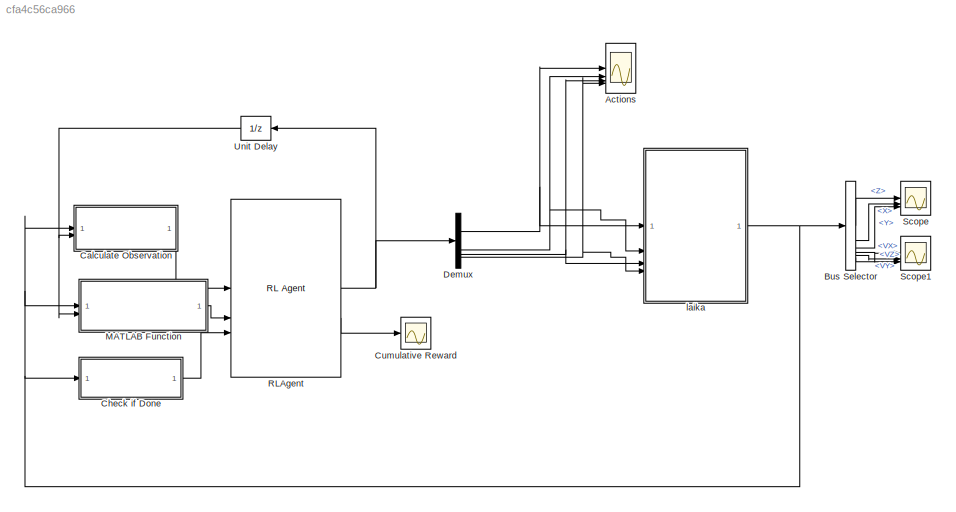
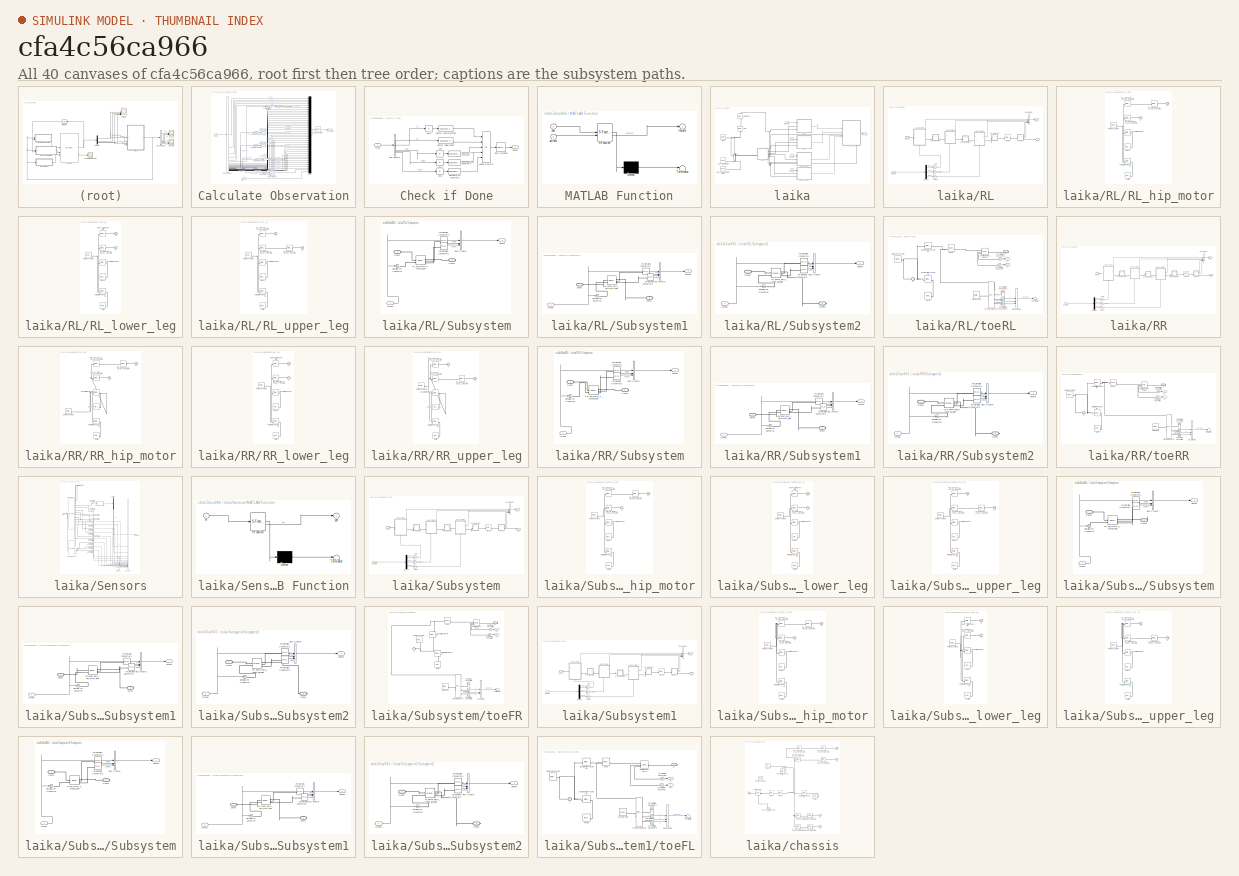
[diagram: thumbnail index - all 40 canvases of the model, root first then tree order]
MODEL slx_cfa4c56ca966
KIND model
CONFIG AbsTol = auto
CONFIG EnableMultiTasking = off
CONFIG FixedStep = auto
CONFIG MaxStep = auto
CONFIG MinStep = auto
CONFIG RelTol = 1e-3
CONFIG SampleTimeConstraint = Unconstrained
CONFIG SolverName = VariableStepAuto
CONFIG StartTime = 0.0
CONFIG StopTime = 10
BLOCK [Scope] Actions
  Floating = off
  NumInputPorts = 4
  ScopeSpecificationString = Simulink.scopes.TimeScopeBlockCfg('CurrentConfiguration', extmgr.ConfigurationSet(extmgr.Configuration('Core','General UI',true),extmgr.Configuration('Core','Source UI',true),extmgr.Configuration('Sources','WiredSimulink',true,'DataLoggingVariableName','ScopeData1'),extmgr.Configuration('Visuals','Time Domain',true,'SerializedDisplays',{struct('MinYLimReal','-3.75','MaxYLimReal','3.75','YLabelReal...<+3926ch>
BLOCK [BusSelector] Bus Selector
  OutputSignals = Z,X,Y,VX,VY,VZ
BLOCK [SubSystem] Calculate Observation
BLOCK [BusSelector] Calculate Observation/Bus Selector
  OutputSignals = yaw,pitch,roll,X,Y,Z,VX,VY,VZ,wx,wy,wz,measRF.signal1.angle,measRF.signal1.speed,measRF.signal2.angle,measRF.signal2.speed,measRF.signal3.angle,measRF.signal3.speed,measRF.signal4,measRB.signal1.angle,measRB.signal1.speed,measRB.signal2.angle,measRB.signal2.speed,measRB.signal3.angle,measRB.signal3.speed,measRB.signal4,measLF.signal1.angle,measLF.signal1.speed,measLF.signal2.angle,measLF.signal2.s...<+202ch>
BLOCK [Reference] Calculate Observation/Compare To Zero  REF=simulink/Logic and Bit
Operations/Compare
To Zero
  SourceBlock = simulink/Logic and Bit\nOperations/Compare\nTo Zero
  SourceType = Compare To Zero
BLOCK [Reference] Calculate Observation/Compare To Zero1  REF=simulink/Logic and Bit
Operations/Compare
To Zero
  SourceBlock = simulink/Logic and Bit\nOperations/Compare\nTo Zero
  SourceType = Compare To Zero
BLOCK [Reference] Calculate Observation/Compare To Zero2  REF=simulink/Logic and Bit
Operations/Compare
To Zero
  SourceBlock = simulink/Logic and Bit\nOperations/Compare\nTo Zero
  SourceType = Compare To Zero
BLOCK [Reference] Calculate Observation/Compare To Zero3  REF=simulink/Logic and Bit
Operations/Compare
To Zero
  SourceBlock = simulink/Logic and Bit\nOperations/Compare\nTo Zero
  SourceType = Compare To Zero
BLOCK [DataTypeConversion] Calculate Observation/Data Type Conversion
  RndMeth = Floor
  SaturateOnIntegerOverflow = off
BLOCK [DataTypeConversion] Calculate Observation/Data Type Conversion1
  RndMeth = Floor
  SaturateOnIntegerOverflow = off
BLOCK [DataTypeConversion] Calculate Observation/Data Type Conversion2
  RndMeth = Floor
  SaturateOnIntegerOverflow = off
BLOCK [DataTypeConversion] Calculate Observation/Data Type Conversion3
  RndMeth = Floor
  SaturateOnIntegerOverflow = off
BLOCK [Mux] Calculate Observation/Mux
  DisplayOption = bar
  Inputs = 41
BLOCK [RateTransition] Calculate Observation/Rate Transition
BLOCK [Gain] Calculate Observation/Scale Height
  Gain = 1/0.05
BLOCK [Bias] Calculate Observation/Subtract Initial Height
  Bias = -initial_height/100
BLOCK [Inport] Calculate Observation/meas
BLOCK [Outport] Calculate Observation/observation
  VectorParamsAs1DForOutWhenUnconnected = off
BLOCK [Inport] Calculate Observation/prevAct
  Port = 2
BLOCK [SubSystem] Check if Done
BLOCK [Abs] Check if Done/Abs
  Commented = on
  SaturateOnIntegerOverflow = off
BLOCK [Abs] Check if Done/Abs1
  Commented = on
  SaturateOnIntegerOverflow = off
BLOCK [Abs] Check if Done/Abs2
  Commented = on
  SaturateOnIntegerOverflow = off
BLOCK [Abs] Check if Done/Abs3
  SaturateOnIntegerOverflow = off
BLOCK [BusSelector] Check if Done/Bus Selector
  OutputSignals = Y,Z,roll,pitch,yaw
BLOCK [Reference] Check if Done/Compare To Constant  REF=simulink/Logic and Bit
Operations/Compare
To Constant
  Commented = on
  SourceBlock = simulink/Logic and Bit\nOperations/Compare\nTo Constant
  SourceType = Compare To Constant
BLOCK [Reference] Check if Done/Compare To Constant1  REF=simulink/Logic and Bit
Operations/Compare
To Constant
  Commented = on
  SourceBlock = simulink/Logic and Bit\nOperations/Compare\nTo Constant
  SourceType = Compare To Constant
BLOCK [Reference] Check if Done/Compare To Constant2  REF=simulink/Logic and Bit
Operations/Compare
To Constant
  Commented = on
  SourceBlock = simulink/Logic and Bit\nOperations/Compare\nTo Constant
  SourceType = Compare To Constant
BLOCK [Reference] Check if Done/Detect Fallen Robot  REF=simulink/Logic and Bit
Operations/Compare
To Constant
  SourceBlock = simulink/Logic and Bit\nOperations/Compare\nTo Constant
  SourceType = Compare To Constant
BLOCK [Reference] Check if Done/Detect Lateral Motion  REF=simulink/Logic and Bit
Operations/Compare
To Constant
  SourceBlock = simulink/Logic and Bit\nOperations/Compare\nTo Constant
  SourceType = Compare To Constant
BLOCK [Logic] Check if Done/Logical Operator
  AllPortsSameDT = off
  Inputs = 5
  Operator = OR
  OutDataTypeStr = boolean
BLOCK [RateTransition] Check if Done/Rate Transition
BLOCK [Outport] Check if Done/isdone
  VectorParamsAs1DForOutWhenUnconnected = off
BLOCK [Inport] Check if Done/meas
BLOCK [Scope] Cumulative Reward
  Floating = off
  NumInputPorts = 1
  ScopeSpecificationString = Simulink.scopes.TimeScopeBlockCfg('CurrentConfiguration', extmgr.ConfigurationSet(extmgr.Configuration('Core','General UI',true),extmgr.Configuration('Core','Source UI',true),extmgr.Configuration('Sources','WiredSimulink',true,'DataLoggingVariableName','ScopeData2'),extmgr.Configuration('Visuals','Time Domain',true,'SerializedDisplays',{struct('MinYLimReal','-2.94508','MaxYLimReal','26.50571','YLa...<+1515ch>
BLOCK [Demux] Demux
BLOCK [SubSystem] MATLAB Function
  ErrorFcn = Stateflow.Translate.translate
  PermitHierarchicalResolution = ExplicitOnly
  SFBlockType = MATLAB Function
  TreatAsAtomicUnit = on
BLOCK [Demux] MATLAB Function/ Demux 
  Outputs = 1
BLOCK [S-Function] MATLAB Function/ SFunction 
  EnableBusSupport = on
  FunctionName = sf_sfun
  PortCounts = [2 2]
  SFcnIsStateOwnerBlock = off
  SFunctionDeploymentMode = off
  Tag = Stateflow S-Function 1
BLOCK [Terminator] MATLAB Function/ Terminator 
BLOCK [Inport] MATLAB Function/actions
  Port = 2
BLOCK [Inport] MATLAB Function/obs
BLOCK [Outport] MATLAB Function/reward
BLOCK [Reference] RLAgent  REF=rllib/RL Agent
  SourceBlock = rllib/RL Agent
  SourceType = RL Agent
BLOCK [Scope] Scope
  Floating = off
  NameLocation = top
  NumInputPorts = 3
  ScopeSpecificationString = Simulink.scopes.TimeScopeBlockCfg('CurrentConfiguration', extmgr.ConfigurationSet(extmgr.Configuration('Core','General UI',true),extmgr.Configuration('Core','Source UI',true),extmgr.Configuration('Sources','WiredSimulink',true),extmgr.Configuration('Visuals','Time Domain',true,'SerializedDisplays',{struct('MinYLimReal','-0.40679','MaxYLimReal','0.88244','YLabelReal','','MinYLimMag','0.00000','MaxY...<+1806ch>
BLOCK [Scope] Scope1
  Floating = off
  NameLocation = top
  NumInputPorts = 3
  ScopeSpecificationString = Simulink.scopes.TimeScopeBlockCfg('CurrentConfiguration', extmgr.ConfigurationSet(extmgr.Configuration('Core','General UI',true),extmgr.Configuration('Core','Source UI',true),extmgr.Configuration('Sources','WiredSimulink',true,'DataLoggingVariableName','ScopeData1'),extmgr.Configuration('Visuals','Time Domain',true,'SerializedDisplays',{struct('MinYLimReal','-3.1432','MaxYLimReal','1.55052','YLabe...<+1857ch>
BLOCK [UnitDelay] Unit Delay
  HasFrameUpgradeWarning = on
  SampleTime = -1
BLOCK [SubSystem] laika
BLOCK [Inport] laika/InputRL
  Port = 2
BLOCK [Reference] laika/MechanismConfiguration  REF=sm_lib/Utilities/Mechanism
Configuration
  SourceBlock = sm_lib/Utilities/Mechanism\nConfiguration
  SourceType = Mechanism\nConfiguration
BLOCK [SubSystem] laika/RL
BLOCK [BusCreator] laika/RL/Bus Creator
  DisplayOption = bar
  InheritFromInputs = on
  Inputs = 5
BLOCK [PMIOPort] laika/RL/Conn1
  Side = Left
BLOCK [Demux] laika/RL/Demux
  Outputs = 3
BLOCK [PMIOPort] laika/RL/G
  NameLocation = top
  Port = 2
  Side = Left
BLOCK [Gain] laika/RL/Gain
  Gain = torque(1,1)
BLOCK [Gain] laika/RL/Gain1
  Gain = torque(1,2)
BLOCK [Gain] laika/RL/Gain2
  Gain = torque(1,3)
BLOCK [Inport] laika/RL/InputRL
BLOCK [SubSystem] laika/RL/RL_hip_motor
BLOCK [PMIOPort] laika/RL/RL_hip_motor/F
  Side = Left
BLOCK [PMIOPort] laika/RL/RL_hip_motor/F1
  Port = 2
  Side = Right
BLOCK [Reference] laika/RL/RL_hip_motor/Inertia  REF=sm_lib/Body Elements/Inertia
  SourceBlock = sm_lib/Body Elements/Inertia
  SourceType = Inertia
BLOCK [Reference] laika/RL/RL_hip_motor/InertiaOriginTransform  REF=sm_lib/Frames and
Transforms/Rigid
Transform
  SourceBlock = sm_lib/Frames and\nTransforms/Rigid\nTransform
  SourceType = Rigid\nTransform
BLOCK [Reference] laika/RL/RL_hip_motor/RL_hip_motor_2_chassis_joint_AxisInvTransform  REF=sm_lib/Frames and
Transforms/Rigid
Transform
  SourceBlock = sm_lib/Frames and\nTransforms/Rigid\nTransform
  SourceType = Rigid\nTransform
BLOCK [Reference] laika/RL/RL_hip_motor/RL_upper_leg_2_hip_motor_joint_AxisTransform  REF=sm_lib/Frames and
Transforms/Rigid
Transform
  SourceBlock = sm_lib/Frames and\nTransforms/Rigid\nTransform
  SourceType = Rigid\nTransform
BLOCK [Reference] laika/RL/RL_hip_motor/RL_upper_leg_2_hip_motor_joint_OriginTransform  REF=sm_lib/Frames and
Transforms/Rigid
Transform
  SourceBlock = sm_lib/Frames and\nTransforms/Rigid\nTransform
  SourceType = Rigid\nTransform
BLOCK [Reference] laika/RL/RL_hip_motor/ReferenceFrame  REF=sm_lib/Frames and
Transforms/Reference
Frame
  SourceBlock = sm_lib/Frames and\nTransforms/Reference\nFrame
  SourceType = Reference\nFrame
BLOCK [Reference] laika/RL/RL_hip_motor/Visual  REF=sm_lib/Body Elements/File Solid
  SourceBlock = sm_lib/Body Elements/File Solid
  SourceType = File Solid
BLOCK [Reference] laika/RL/RL_hip_motor/VisualOriginTransform  REF=sm_lib/Frames and
Transforms/Rigid
Transform
  SourceBlock = sm_lib/Frames and\nTransforms/Rigid\nTransform
  SourceType = Rigid\nTransform
BLOCK [SubSystem] laika/RL/RL_lower_leg
BLOCK [PMIOPort] laika/RL/RL_lower_leg/F
  Side = Left
BLOCK [PMIOPort] laika/RL/RL_lower_leg/F1
  Port = 2
  Side = Right
BLOCK [Reference] laika/RL/RL_lower_leg/Inertia  REF=sm_lib/Body Elements/Inertia
  SourceBlock = sm_lib/Body Elements/Inertia
  SourceType = Inertia
BLOCK [Reference] laika/RL/RL_lower_leg/InertiaOriginTransform  REF=sm_lib/Frames and
Transforms/Rigid
Transform
  SourceBlock = sm_lib/Frames and\nTransforms/Rigid\nTransform
  SourceType = Rigid\nTransform
BLOCK [Reference] laika/RL/RL_lower_leg/RL_lower_leg_2_upper_leg_joint_AxisInvTransform  REF=sm_lib/Frames and
Transforms/Rigid
Transform
  SourceBlock = sm_lib/Frames and\nTransforms/Rigid\nTransform
  SourceType = Rigid\nTransform
BLOCK [Reference] laika/RL/RL_lower_leg/ReferenceFrame  REF=sm_lib/Frames and
Transforms/Reference
Frame
  SourceBlock = sm_lib/Frames and\nTransforms/Reference\nFrame
  SourceType = Reference\nFrame
BLOCK [Reference] laika/RL/RL_lower_leg/Visual  REF=sm_lib/Body Elements/File Solid
  SourceBlock = sm_lib/Body Elements/File Solid
  SourceType = File Solid
BLOCK [Reference] laika/RL/RL_lower_leg/VisualOriginTransform  REF=sm_lib/Frames and
Transforms/Rigid
Transform
  SourceBlock = sm_lib/Frames and\nTransforms/Rigid\nTransform
  SourceType = Rigid\nTransform
BLOCK [Reference] laika/RL/RL_lower_leg/jtoeRL_OriginTransform  REF=sm_lib/Frames and
Transforms/Rigid
Transform
  SourceBlock = sm_lib/Frames and\nTransforms/Rigid\nTransform
  SourceType = Rigid\nTransform
BLOCK [SubSystem] laika/RL/RL_upper_leg
BLOCK [PMIOPort] laika/RL/RL_upper_leg/F
  Side = Left
BLOCK [PMIOPort] laika/RL/RL_upper_leg/F1
  Port = 2
  Side = Right
BLOCK [Reference] laika/RL/RL_upper_leg/Inertia  REF=sm_lib/Body Elements/Inertia
  SourceBlock = sm_lib/Body Elements/Inertia
  SourceType = Inertia
BLOCK [Reference] laika/RL/RL_upper_leg/InertiaOriginTransform  REF=sm_lib/Frames and
Transforms/Rigid
Transform
  SourceBlock = sm_lib/Frames and\nTransforms/Rigid\nTransform
  SourceType = Rigid\nTransform
BLOCK [Reference] laika/RL/RL_upper_leg/RL_lower_leg_2_upper_leg_joint_AxisTransform  REF=sm_lib/Frames and
Transforms/Rigid
Transform
  SourceBlock = sm_lib/Frames and\nTransforms/Rigid\nTransform
  SourceType = Rigid\nTransform
BLOCK [Reference] laika/RL/RL_upper_leg/RL_lower_leg_2_upper_leg_joint_OriginTransform  REF=sm_lib/Frames and
Transforms/Rigid
Transform
  SourceBlock = sm_lib/Frames and\nTransforms/Rigid\nTransform
  SourceType = Rigid\nTransform
BLOCK [Reference] laika/RL/RL_upper_leg/RL_upper_leg_2_hip_motor_joint_AxisInvTransform  REF=sm_lib/Frames and
Transforms/Rigid
Transform
  SourceBlock = sm_lib/Frames and\nTransforms/Rigid\nTransform
  SourceType = Rigid\nTransform
BLOCK [Reference] laika/RL/RL_upper_leg/ReferenceFrame  REF=sm_lib/Frames and
Transforms/Reference
Frame
  SourceBlock = sm_lib/Frames and\nTransforms/Reference\nFrame
  SourceType = Reference\nFrame
BLOCK [Reference] laika/RL/RL_upper_leg/Visual  REF=sm_lib/Body Elements/File Solid
  SourceBlock = sm_lib/Body Elements/File Solid
  SourceType = File Solid
BLOCK [Reference] laika/RL/RL_upper_leg/VisualOriginTransform  REF=sm_lib/Frames and
Transforms/Rigid
Transform
  SourceBlock = sm_lib/Frames and\nTransforms/Rigid\nTransform
  SourceType = Rigid\nTransform
BLOCK [SubSystem] laika/RL/Subsystem
  PortSchema = {"entries":[{"content":{"sides":[{"content":{"connectorIds":["LConn1"]},"type":"ConnectorPlacement.EquallySpacedRectSide","uuid":"d10d1646-662a-418c-8f44-f8cb7d7b2586"},{"content":{"connectorIds":["RConn1"],"side":"RIGHT"},"type":"ConnectorPlacement.EquallySpacedRectSide","uuid":"1df4eb92-be91-4006-ac5e-dec2e273d2b2"},{"content":{"connectorIds":["Out1"],"side":"TOP"},"type":"ConnectorPlacement.Equ...<+400ch>  <repeated x8 — deduplicated; at blocks: Subsystem, Subsystem1>
BLOCK [BusCreator] laika/RL/Subsystem/Bus Creator
  DisplayOption = bar
  InheritFromInputs = on
  Inputs = 3
BLOCK [PMIOPort] laika/RL/Subsystem/Conn1
  Side = Left
BLOCK [PMIOPort] laika/RL/Subsystem/Conn3
  Port = 2
  Side = Right
BLOCK [Reference] laika/RL/Subsystem/PS-Simulink Converter1  REF=nesl_utility/PS-Simulink
Converter
  SourceBlock = nesl_utility/PS-Simulink\nConverter
  SourceType = PS-Simulink\nConverter
BLOCK [Reference] laika/RL/Subsystem/PS-Simulink Converter2  REF=nesl_utility/PS-Simulink
Converter
  SourceBlock = nesl_utility/PS-Simulink\nConverter
  SourceType = PS-Simulink\nConverter
BLOCK [Reference] laika/RL/Subsystem/RL_hip_motor_2_chassis_joint  REF=sm_lib/Joints/Revolute Joint
  SourceBlock = sm_lib/Joints/Revolute Joint
  SourceType = Revolute Joint
BLOCK [Outport] laika/RL/Subsystem/Sensor
BLOCK [Reference] laika/RL/Subsystem/Simulink-PS Converter  REF=nesl_utility/Simulink-PS
Converter
  SourceBlock = nesl_utility/Simulink-PS\nConverter
  SourceType = Simulink-PS\nConverter
BLOCK [Inport] laika/RL/Subsystem/torque
BLOCK [SubSystem] laika/RL/Subsystem1
BLOCK [BusCreator] laika/RL/Subsystem1/Bus Creator
  DisplayOption = bar
  InheritFromInputs = on
  Inputs = 3
BLOCK [PMIOPort] laika/RL/Subsystem1/Conn1
  Port = 2
  Side = Right
BLOCK [PMIOPort] laika/RL/Subsystem1/Conn2
  Side = Left
BLOCK [Reference] laika/RL/Subsystem1/PS-Simulink Converter1  REF=nesl_utility/PS-Simulink
Converter
  SourceBlock = nesl_utility/PS-Simulink\nConverter
  SourceType = PS-Simulink\nConverter
BLOCK [Reference] laika/RL/Subsystem1/PS-Simulink Converter2  REF=nesl_utility/PS-Simulink
Converter
  SourceBlock = nesl_utility/PS-Simulink\nConverter
  SourceType = PS-Simulink\nConverter
BLOCK [Reference] laika/RL/Subsystem1/RL_upper_leg_2_hip_motor_joint  REF=sm_lib/Joints/Revolute Joint
  SourceBlock = sm_lib/Joints/Revolute Joint
  SourceType = Revolute Joint
BLOCK [Outport] laika/RL/Subsystem1/Sensor
BLOCK [Reference] laika/RL/Subsystem1/Simulink-PS Converter  REF=nesl_utility/Simulink-PS
Converter
  SourceBlock = nesl_utility/Simulink-PS\nConverter
  SourceType = Simulink-PS\nConverter
BLOCK [Inport] laika/RL/Subsystem1/torque
BLOCK [SubSystem] laika/RL/Subsystem2
  PortSchema = {"entries":[{"content":{"sides":[{"content":{"connectorIds":["LConn1"]},"type":"ConnectorPlacement.EquallySpacedRectSide","uuid":"d10d1646-662a-418c-8f44-f8cb7d7b2586"},{"content":{"connectorIds":["Out1","RConn1"],"side":"RIGHT"},"type":"ConnectorPlacement.EquallySpacedRectSide","uuid":"1df4eb92-be91-4006-ac5e-dec2e273d2b2"},{"content":{"side":"TOP"},"type":"ConnectorPlacement.EquallySpacedRectSid...<+383ch>  <repeated x4 — deduplicated; at blocks: Subsystem2>
BLOCK [BusCreator] laika/RL/Subsystem2/Bus Creator
  DisplayOption = bar
  InheritFromInputs = on
  Inputs = 3
BLOCK [PMIOPort] laika/RL/Subsystem2/Conn1
  Side = Left
BLOCK [PMIOPort] laika/RL/Subsystem2/Conn2
  Port = 2
  Side = Right
BLOCK [Reference] laika/RL/Subsystem2/PS-Simulink Converter1  REF=nesl_utility/PS-Simulink
Converter
  SourceBlock = nesl_utility/PS-Simulink\nConverter
  SourceType = PS-Simulink\nConverter
BLOCK [Reference] laika/RL/Subsystem2/PS-Simulink Converter2  REF=nesl_utility/PS-Simulink
Converter
  SourceBlock = nesl_utility/PS-Simulink\nConverter
  SourceType = PS-Simulink\nConverter
BLOCK [Reference] laika/RL/Subsystem2/RL_lower_leg_2_upper_leg_joint  REF=sm_lib/Joints/Revolute Joint
  SourceBlock = sm_lib/Joints/Revolute Joint
  SourceType = Revolute Joint
BLOCK [Outport] laika/RL/Subsystem2/Sensor
BLOCK [Reference] laika/RL/Subsystem2/Simulink-PS Converter  REF=nesl_utility/Simulink-PS
Converter
  SourceBlock = nesl_utility/Simulink-PS\nConverter
  SourceType = Simulink-PS\nConverter
BLOCK [Inport] laika/RL/Subsystem2/torque
BLOCK [Reference] laika/RL/jtoeRL  REF=sm_lib/Joints/Weld Joint
  SourceBlock = sm_lib/Joints/Weld Joint
  SourceType = Weld Joint
BLOCK [Outport] laika/RL/meas
  VectorParamsAs1DForOutWhenUnconnected = off
BLOCK [SubSystem] laika/RL/toeRL
BLOCK [BusCreator] laika/RL/toeRL/Bus Creator
  DisplayOption = bar
  InheritFromInputs = on
  Inputs = 3
BLOCK [PMIOPort] laika/RL/toeRL/F
  Side = Left
BLOCK [Outport] laika/RL/toeRL/Ff
  Port = 2
BLOCK [Outport] laika/RL/toeRL/Fn
BLOCK [PMIOPort] laika/RL/toeRL/G
  Port = 2
  Side = Right
BLOCK [Reference] laika/RL/toeRL/Inertia  REF=sm_lib/Body Elements/Inertia
  SourceBlock = sm_lib/Body Elements/Inertia
  SourceType = Inertia
BLOCK [Reference] laika/RL/toeRL/InertiaOriginTransform  REF=sm_lib/Frames and
Transforms/Rigid
Transform
  SourceBlock = sm_lib/Frames and\nTransforms/Rigid\nTransform
  SourceType = Rigid\nTransform
BLOCK [Reference] laika/RL/toeRL/PS-Simulink Converter  REF=nesl_utility/PS-Simulink
Converter
  SourceBlock = nesl_utility/PS-Simulink\nConverter
  SourceType = PS-Simulink\nConverter
BLOCK [Reference] laika/RL/toeRL/PS-Simulink Converter1  REF=nesl_utility/PS-Simulink
Converter
  SourceBlock = nesl_utility/PS-Simulink\nConverter
  SourceType = PS-Simulink\nConverter
BLOCK [Reference] laika/RL/toeRL/PS-Simulink Converter2  REF=nesl_utility/PS-Simulink
Converter
  SourceBlock = nesl_utility/PS-Simulink\nConverter
  SourceType = PS-Simulink\nConverter
BLOCK [Reference] laika/RL/toeRL/PS-Simulink Converter3  REF=nesl_utility/PS-Simulink
Converter
  SourceBlock = nesl_utility/PS-Simulink\nConverter
  SourceType = PS-Simulink\nConverter
BLOCK [Reference] laika/RL/toeRL/PS-Simulink Converter4  REF=nesl_utility/PS-Simulink
Converter
  SourceBlock = nesl_utility/PS-Simulink\nConverter
  SourceType = PS-Simulink\nConverter
BLOCK [Reference] laika/RL/toeRL/ReferenceFrame  REF=sm_lib/Frames and
Transforms/Reference
Frame
  SourceBlock = sm_lib/Frames and\nTransforms/Reference\nFrame
  SourceType = Reference\nFrame
BLOCK [Reference] laika/RL/toeRL/Spatial Contact Force  REF=sm_lib/Forces and
Torques/Spatial
Contact Force
  SourceBlock = sm_lib/Forces and\nTorques/Spatial\nContact Force
  SourceType = Spatial\nContact Force
BLOCK [Terminator] laika/RL/toeRL/Terminator
BLOCK [Reference] laika/RL/toeRL/Transform Sensor  REF=sm_lib/Frames and
Transforms/Transform
Sensor
  NameLocation = top
  SourceBlock = sm_lib/Frames and\nTransforms/Transform\nSensor
  SourceType = Transform\nSensor
BLOCK [Reference] laika/RL/toeRL/Visual  REF=sm_lib/Body Elements/Spherical Solid
  SourceBlock = sm_lib/Body Elements/Spherical Solid
  SourceType = Spherical Solid
BLOCK [Reference] laika/RL/toeRL/VisualOriginTransform  REF=sm_lib/Frames and
Transforms/Rigid
Transform
  SourceBlock = sm_lib/Frames and\nTransforms/Rigid\nTransform
  SourceType = Rigid\nTransform
BLOCK [Reference] laika/RL/toeRL/World Frame  REF=sm_lib/Frames and
Transforms/World Frame
  SourceBlock = sm_lib/Frames and\nTransforms/World Frame
  SourceType = World Frame
BLOCK [SubSystem] laika/RR
BLOCK [BusCreator] laika/RR/Bus Creator
  DisplayOption = bar
  InheritFromInputs = on
  Inputs = 5
BLOCK [PMIOPort] laika/RR/Conn1
  Side = Left
BLOCK [Demux] laika/RR/Demux
  Outputs = 3
BLOCK [PMIOPort] laika/RR/G
  NameLocation = top
  Port = 2
  Side = Left
BLOCK [Gain] laika/RR/Gain
  Gain = torque(1,1)
BLOCK [Gain] laika/RR/Gain1
  Gain = torque(1,2)
BLOCK [Gain] laika/RR/Gain2
  Gain = torque(1,3)
BLOCK [Inport] laika/RR/InputRR
BLOCK [SubSystem] laika/RR/RR_hip_motor
BLOCK [PMIOPort] laika/RR/RR_hip_motor/F
  Side = Left
BLOCK [PMIOPort] laika/RR/RR_hip_motor/F1
  Port = 2
  Side = Right
BLOCK [Reference] laika/RR/RR_hip_motor/Inertia  REF=sm_lib/Body Elements/Inertia
  SourceBlock = sm_lib/Body Elements/Inertia
  SourceType = Inertia
BLOCK [Reference] laika/RR/RR_hip_motor/InertiaOriginTransform  REF=sm_lib/Frames and
Transforms/Rigid
Transform
  SourceBlock = sm_lib/Frames and\nTransforms/Rigid\nTransform
  SourceType = Rigid\nTransform
BLOCK [Reference] laika/RR/RR_hip_motor/RR_hip_motor_2_chassis_joint_AxisInvTransform  REF=sm_lib/Frames and
Transforms/Rigid
Transform
  SourceBlock = sm_lib/Frames and\nTransforms/Rigid\nTransform
  SourceType = Rigid\nTransform
BLOCK [Reference] laika/RR/RR_hip_motor/RR_upper_leg_2_hip_motor_joint_AxisTransform  REF=sm_lib/Frames and
Transforms/Rigid
Transform
  SourceBlock = sm_lib/Frames and\nTransforms/Rigid\nTransform
  SourceType = Rigid\nTransform
BLOCK [Reference] laika/RR/RR_hip_motor/RR_upper_leg_2_hip_motor_joint_OriginTransform  REF=sm_lib/Frames and
Transforms/Rigid
Transform
  SourceBlock = sm_lib/Frames and\nTransforms/Rigid\nTransform
  SourceType = Rigid\nTransform
BLOCK [Reference] laika/RR/RR_hip_motor/ReferenceFrame  REF=sm_lib/Frames and
Transforms/Reference
Frame
  SourceBlock = sm_lib/Frames and\nTransforms/Reference\nFrame
  SourceType = Reference\nFrame
BLOCK [Reference] laika/RR/RR_hip_motor/Visual  REF=sm_lib/Body Elements/File Solid
  SourceBlock = sm_lib/Body Elements/File Solid
  SourceType = File Solid
BLOCK [Reference] laika/RR/RR_hip_motor/VisualOriginTransform  REF=sm_lib/Frames and
Transforms/Rigid
Transform
  SourceBlock = sm_lib/Frames and\nTransforms/Rigid\nTransform
  SourceType = Rigid\nTransform
BLOCK [SubSystem] laika/RR/RR_lower_leg
BLOCK [PMIOPort] laika/RR/RR_lower_leg/F
  Side = Left
BLOCK [PMIOPort] laika/RR/RR_lower_leg/F1
  Port = 2
  Side = Right
BLOCK [Reference] laika/RR/RR_lower_leg/Inertia  REF=sm_lib/Body Elements/Inertia
  SourceBlock = sm_lib/Body Elements/Inertia
  SourceType = Inertia
BLOCK [Reference] laika/RR/RR_lower_leg/InertiaOriginTransform  REF=sm_lib/Frames and
Transforms/Rigid
Transform
  SourceBlock = sm_lib/Frames and\nTransforms/Rigid\nTransform
  SourceType = Rigid\nTransform
BLOCK [Reference] laika/RR/RR_lower_leg/RR_lower_leg_2_upper_leg_joint_AxisInvTransform  REF=sm_lib/Frames and
Transforms/Rigid
Transform
  SourceBlock = sm_lib/Frames and\nTransforms/Rigid\nTransform
  SourceType = Rigid\nTransform
BLOCK [Reference] laika/RR/RR_lower_leg/ReferenceFrame  REF=sm_lib/Frames and
Transforms/Reference
Frame
  SourceBlock = sm_lib/Frames and\nTransforms/Reference\nFrame
  SourceType = Reference\nFrame
BLOCK [Reference] laika/RR/RR_lower_leg/Visual  REF=sm_lib/Body Elements/File Solid
  SourceBlock = sm_lib/Body Elements/File Solid
  SourceType = File Solid
BLOCK [Reference] laika/RR/RR_lower_leg/VisualOriginTransform  REF=sm_lib/Frames and
Transforms/Rigid
Transform
  SourceBlock = sm_lib/Frames and\nTransforms/Rigid\nTransform
  SourceType = Rigid\nTransform
BLOCK [Reference] laika/RR/RR_lower_leg/jtoeRR_OriginTransform  REF=sm_lib/Frames and
Transforms/Rigid
Transform
  SourceBlock = sm_lib/Frames and\nTransforms/Rigid\nTransform
  SourceType = Rigid\nTransform
BLOCK [SubSystem] laika/RR/RR_upper_leg
BLOCK [PMIOPort] laika/RR/RR_upper_leg/F
  Side = Left
BLOCK [PMIOPort] laika/RR/RR_upper_leg/F1
  Port = 2
  Side = Right
BLOCK [Reference] laika/RR/RR_upper_leg/Inertia  REF=sm_lib/Body Elements/Inertia
  SourceBlock = sm_lib/Body Elements/Inertia
  SourceType = Inertia
BLOCK [Reference] laika/RR/RR_upper_leg/InertiaOriginTransform  REF=sm_lib/Frames and
Transforms/Rigid
Transform
  SourceBlock = sm_lib/Frames and\nTransforms/Rigid\nTransform
  SourceType = Rigid\nTransform
BLOCK [Reference] laika/RR/RR_upper_leg/RR_lower_leg_2_upper_leg_joint_AxisTransform  REF=sm_lib/Frames and
Transforms/Rigid
Transform
  SourceBlock = sm_lib/Frames and\nTransforms/Rigid\nTransform
  SourceType = Rigid\nTransform
BLOCK [Reference] laika/RR/RR_upper_leg/RR_lower_leg_2_upper_leg_joint_OriginTransform  REF=sm_lib/Frames and
Transforms/Rigid
Transform
  SourceBlock = sm_lib/Frames and\nTransforms/Rigid\nTransform
  SourceType = Rigid\nTransform
BLOCK [Reference] laika/RR/RR_upper_leg/RR_upper_leg_2_hip_motor_joint_AxisInvTransform  REF=sm_lib/Frames and
Transforms/Rigid
Transform
  SourceBlock = sm_lib/Frames and\nTransforms/Rigid\nTransform
  SourceType = Rigid\nTransform
BLOCK [Reference] laika/RR/RR_upper_leg/ReferenceFrame  REF=sm_lib/Frames and
Transforms/Reference
Frame
  SourceBlock = sm_lib/Frames and\nTransforms/Reference\nFrame
  SourceType = Reference\nFrame
BLOCK [Reference] laika/RR/RR_upper_leg/Visual  REF=sm_lib/Body Elements/File Solid
  SourceBlock = sm_lib/Body Elements/File Solid
  SourceType = File Solid
BLOCK [Reference] laika/RR/RR_upper_leg/VisualOriginTransform  REF=sm_lib/Frames and
Transforms/Rigid
Transform
  SourceBlock = sm_lib/Frames and\nTransforms/Rigid\nTransform
  SourceType = Rigid\nTransform
BLOCK [SubSystem] laika/RR/Subsystem
BLOCK [BusCreator] laika/RR/Subsystem/Bus Creator
  DisplayOption = bar
  InheritFromInputs = on
  Inputs = 3
BLOCK [PMIOPort] laika/RR/Subsystem/Conn1
  Side = Left
BLOCK [PMIOPort] laika/RR/Subsystem/Conn3
  Port = 2
  Side = Right
BLOCK [Reference] laika/RR/Subsystem/PS-Simulink Converter1  REF=nesl_utility/PS-Simulink
Converter
  SourceBlock = nesl_utility/PS-Simulink\nConverter
  SourceType = PS-Simulink\nConverter
BLOCK [Reference] laika/RR/Subsystem/PS-Simulink Converter2  REF=nesl_utility/PS-Simulink
Converter
  SourceBlock = nesl_utility/PS-Simulink\nConverter
  SourceType = PS-Simulink\nConverter
BLOCK [Reference] laika/RR/Subsystem/RR_hip_motor_2_chassis_joint  REF=sm_lib/Joints/Revolute Joint
  SourceBlock = sm_lib/Joints/Revolute Joint
  SourceType = Revolute Joint
BLOCK [Outport] laika/RR/Subsystem/Sensor
BLOCK [Reference] laika/RR/Subsystem/Simulink-PS Converter  REF=nesl_utility/Simulink-PS
Converter
  SourceBlock = nesl_utility/Simulink-PS\nConverter
  SourceType = Simulink-PS\nConverter
BLOCK [Inport] laika/RR/Subsystem/torque
BLOCK [SubSystem] laika/RR/Subsystem1
BLOCK [BusCreator] laika/RR/Subsystem1/Bus Creator
  DisplayOption = bar
  InheritFromInputs = on
  Inputs = 3
BLOCK [PMIOPort] laika/RR/Subsystem1/Conn1
  Port = 2
  Side = Right
BLOCK [PMIOPort] laika/RR/Subsystem1/Conn2
  Side = Left
BLOCK [Reference] laika/RR/Subsystem1/PS-Simulink Converter1  REF=nesl_utility/PS-Simulink
Converter
  SourceBlock = nesl_utility/PS-Simulink\nConverter
  SourceType = PS-Simulink\nConverter
BLOCK [Reference] laika/RR/Subsystem1/PS-Simulink Converter2  REF=nesl_utility/PS-Simulink
Converter
  SourceBlock = nesl_utility/PS-Simulink\nConverter
  SourceType = PS-Simulink\nConverter
BLOCK [Reference] laika/RR/Subsystem1/RR_upper_leg_2_hip_motor_joint  REF=sm_lib/Joints/Revolute Joint
  SourceBlock = sm_lib/Joints/Revolute Joint
  SourceType = Revolute Joint
BLOCK [Outport] laika/RR/Subsystem1/Sensor
BLOCK [Reference] laika/RR/Subsystem1/Simulink-PS Converter  REF=nesl_utility/Simulink-PS
Converter
  SourceBlock = nesl_utility/Simulink-PS\nConverter
  SourceType = Simulink-PS\nConverter
BLOCK [Inport] laika/RR/Subsystem1/torque
BLOCK [SubSystem] laika/RR/Subsystem2
BLOCK [BusCreator] laika/RR/Subsystem2/Bus Creator
  DisplayOption = bar
  InheritFromInputs = on
  Inputs = 3
BLOCK [PMIOPort] laika/RR/Subsystem2/Conn1
  Side = Left
BLOCK [PMIOPort] laika/RR/Subsystem2/Conn2
  Port = 2
  Side = Right
BLOCK [Reference] laika/RR/Subsystem2/PS-Simulink Converter1  REF=nesl_utility/PS-Simulink
Converter
  SourceBlock = nesl_utility/PS-Simulink\nConverter
  SourceType = PS-Simulink\nConverter
BLOCK [Reference] laika/RR/Subsystem2/PS-Simulink Converter2  REF=nesl_utility/PS-Simulink
Converter
  SourceBlock = nesl_utility/PS-Simulink\nConverter
  SourceType = PS-Simulink\nConverter
BLOCK [Reference] laika/RR/Subsystem2/RR_lower_leg_2_upper_leg_joint  REF=sm_lib/Joints/Revolute Joint
  SourceBlock = sm_lib/Joints/Revolute Joint
  SourceType = Revolute Joint
BLOCK [Outport] laika/RR/Subsystem2/Sensor
BLOCK [Reference] laika/RR/Subsystem2/Simulink-PS Converter  REF=nesl_utility/Simulink-PS
Converter
  SourceBlock = nesl_utility/Simulink-PS\nConverter
  SourceType = Simulink-PS\nConverter
BLOCK [Inport] laika/RR/Subsystem2/torque
BLOCK [Reference] laika/RR/jtoeRR  REF=sm_lib/Joints/Weld Joint
  SourceBlock = sm_lib/Joints/Weld Joint
  SourceType = Weld Joint
BLOCK [Outport] laika/RR/meas
  VectorParamsAs1DForOutWhenUnconnected = off
BLOCK [SubSystem] laika/RR/toeRR
BLOCK [BusCreator] laika/RR/toeRR/Bus Creator
  DisplayOption = bar
  InheritFromInputs = on
  Inputs = 3
BLOCK [PMIOPort] laika/RR/toeRR/F
  Side = Left
BLOCK [Outport] laika/RR/toeRR/Ff
  Port = 2
BLOCK [Outport] laika/RR/toeRR/Fn
BLOCK [PMIOPort] laika/RR/toeRR/G
  Port = 2
  Side = Right
BLOCK [Reference] laika/RR/toeRR/Inertia  REF=sm_lib/Body Elements/Inertia
  SourceBlock = sm_lib/Body Elements/Inertia
  SourceType = Inertia
BLOCK [Reference] laika/RR/toeRR/InertiaOriginTransform  REF=sm_lib/Frames and
Transforms/Rigid
Transform
  SourceBlock = sm_lib/Frames and\nTransforms/Rigid\nTransform
  SourceType = Rigid\nTransform
BLOCK [Reference] laika/RR/toeRR/PS-Simulink Converter  REF=nesl_utility/PS-Simulink
Converter
  SourceBlock = nesl_utility/PS-Simulink\nConverter
  SourceType = PS-Simulink\nConverter
BLOCK [Reference] laika/RR/toeRR/PS-Simulink Converter1  REF=nesl_utility/PS-Simulink
Converter
  SourceBlock = nesl_utility/PS-Simulink\nConverter
  SourceType = PS-Simulink\nConverter
BLOCK [Reference] laika/RR/toeRR/PS-Simulink Converter2  REF=nesl_utility/PS-Simulink
Converter
  SourceBlock = nesl_utility/PS-Simulink\nConverter
  SourceType = PS-Simulink\nConverter
BLOCK [Reference] laika/RR/toeRR/PS-Simulink Converter3  REF=nesl_utility/PS-Simulink
Converter
  SourceBlock = nesl_utility/PS-Simulink\nConverter
  SourceType = PS-Simulink\nConverter
BLOCK [Reference] laika/RR/toeRR/PS-Simulink Converter4  REF=nesl_utility/PS-Simulink
Converter
  SourceBlock = nesl_utility/PS-Simulink\nConverter
  SourceType = PS-Simulink\nConverter
BLOCK [Reference] laika/RR/toeRR/ReferenceFrame  REF=sm_lib/Frames and
Transforms/Reference
Frame
  SourceBlock = sm_lib/Frames and\nTransforms/Reference\nFrame
  SourceType = Reference\nFrame
BLOCK [Reference] laika/RR/toeRR/Spatial Contact Force  REF=sm_lib/Forces and
Torques/Spatial
Contact Force
  SourceBlock = sm_lib/Forces and\nTorques/Spatial\nContact Force
  SourceType = Spatial\nContact Force
BLOCK [Terminator] laika/RR/toeRR/Terminator
BLOCK [Reference] laika/RR/toeRR/Transform Sensor  REF=sm_lib/Frames and
Transforms/Transform
Sensor
  NameLocation = top
  SourceBlock = sm_lib/Frames and\nTransforms/Transform\nSensor
  SourceType = Transform\nSensor
BLOCK [Reference] laika/RR/toeRR/Visual  REF=sm_lib/Body Elements/Spherical Solid
  SourceBlock = sm_lib/Body Elements/Spherical Solid
  SourceType = Spherical Solid
BLOCK [Reference] laika/RR/toeRR/VisualOriginTransform  REF=sm_lib/Frames and
Transforms/Rigid
Transform
  SourceBlock = sm_lib/Frames and\nTransforms/Rigid\nTransform
  SourceType = Rigid\nTransform
BLOCK [Reference] laika/RR/toeRR/World Frame  REF=sm_lib/Frames and
Transforms/World Frame
  SourceBlock = sm_lib/Frames and\nTransforms/World Frame
  SourceType = World Frame
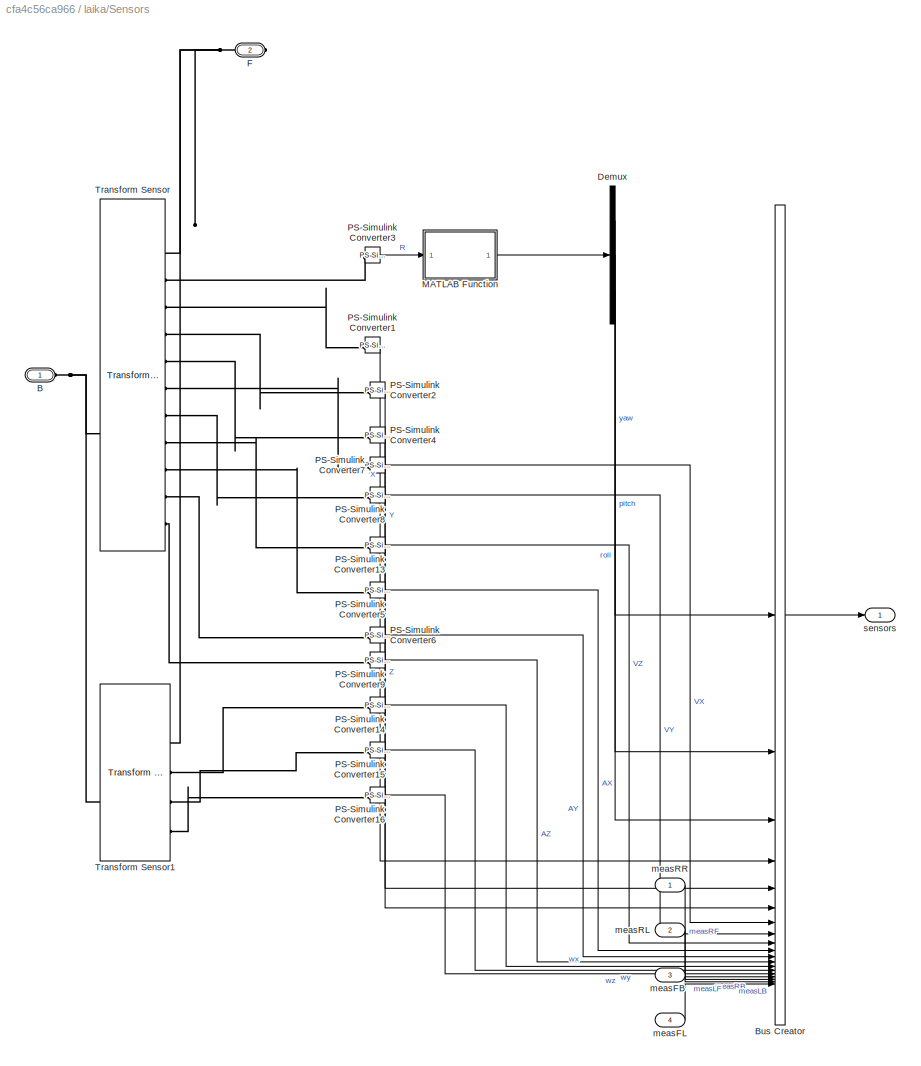
BLOCK [SubSystem] laika/Sensors
  PortSchema = {"entries":[{"content":{"sides":[{"content":{"connectorIds":["In1","In2","In3","In4"]},"type":"ConnectorPlacement.EquallySpacedRectSide","uuid":"3df3d218-abd4-4704-a7f5-393c9b3793f0"},{"content":{"connectorIds":["Out1"],"side":"RIGHT"},"type":"ConnectorPlacement.EquallySpacedRectSide","uuid":"04e38e81-ef79-4693-9892-346f49c2e321"},{"content":{"connectorIds":["LConn1"],"side":"TOP"},"type":"Connect...<+418ch>
BLOCK [PMIOPort] laika/Sensors/B
  Side = Left
BLOCK [BusCreator] laika/Sensors/Bus Creator
  DisplayOption = bar
  InheritFromInputs = on
  Inputs = 19
BLOCK [Demux] laika/Sensors/Demux
  Outputs = 3
BLOCK [PMIOPort] laika/Sensors/F
  Port = 2
  Side = Right
BLOCK [SubSystem] laika/Sensors/MATLAB Function
  ErrorFcn = Stateflow.Translate.translate
  PermitHierarchicalResolution = ExplicitOnly
  SFBlockType = MATLAB Function
  TreatAsAtomicUnit = on
BLOCK [Demux] laika/Sensors/MATLAB Function/ Demux 
  Outputs = 1
BLOCK [S-Function] laika/Sensors/MATLAB Function/ SFunction 
  EnableBusSupport = on
  FunctionName = sf_sfun
  PortCounts = [1 2]
  SFcnIsStateOwnerBlock = off
  SFunctionDeploymentMode = off
  Tag = Stateflow S-Function 2
BLOCK [Terminator] laika/Sensors/MATLAB Function/ Terminator 
BLOCK [Inport] laika/Sensors/MATLAB Function/R
BLOCK [Outport] laika/Sensors/MATLAB Function/ypr
BLOCK [Reference] laika/Sensors/PS-Simulink Converter1  REF=nesl_utility/PS-Simulink
Converter
  SourceBlock = nesl_utility/PS-Simulink\nConverter
  SourceType = PS-Simulink\nConverter
BLOCK [Reference] laika/Sensors/PS-Simulink Converter13  REF=nesl_utility/PS-Simulink
Converter
  SourceBlock = nesl_utility/PS-Simulink\nConverter
  SourceType = PS-Simulink\nConverter
BLOCK [Reference] laika/Sensors/PS-Simulink Converter14  REF=nesl_utility/PS-Simulink
Converter
  SourceBlock = nesl_utility/PS-Simulink\nConverter
  SourceType = PS-Simulink\nConverter
BLOCK [Reference] laika/Sensors/PS-Simulink Converter15  REF=nesl_utility/PS-Simulink
Converter
  SourceBlock = nesl_utility/PS-Simulink\nConverter
  SourceType = PS-Simulink\nConverter
BLOCK [Reference] laika/Sensors/PS-Simulink Converter16  REF=nesl_utility/PS-Simulink
Converter
  SourceBlock = nesl_utility/PS-Simulink\nConverter
  SourceType = PS-Simulink\nConverter
BLOCK [Reference] laika/Sensors/PS-Simulink Converter2  REF=nesl_utility/PS-Simulink
Converter
  SourceBlock = nesl_utility/PS-Simulink\nConverter
  SourceType = PS-Simulink\nConverter
BLOCK [Reference] laika/Sensors/PS-Simulink Converter3  REF=nesl_utility/PS-Simulink
Converter
  SourceBlock = nesl_utility/PS-Simulink\nConverter
  SourceType = PS-Simulink\nConverter
BLOCK [Reference] laika/Sensors/PS-Simulink Converter4  REF=nesl_utility/PS-Simulink
Converter
  SourceBlock = nesl_utility/PS-Simulink\nConverter
  SourceType = PS-Simulink\nConverter
BLOCK [Reference] laika/Sensors/PS-Simulink Converter5  REF=nesl_utility/PS-Simulink
Converter
  SourceBlock = nesl_utility/PS-Simulink\nConverter
  SourceType = PS-Simulink\nConverter
BLOCK [Reference] laika/Sensors/PS-Simulink Converter6  REF=nesl_utility/PS-Simulink
Converter
  SourceBlock = nesl_utility/PS-Simulink\nConverter
  SourceType = PS-Simulink\nConverter
BLOCK [Reference] laika/Sensors/PS-Simulink Converter7  REF=nesl_utility/PS-Simulink
Converter
  SourceBlock = nesl_utility/PS-Simulink\nConverter
  SourceType = PS-Simulink\nConverter
BLOCK [Reference] laika/Sensors/PS-Simulink Converter8  REF=nesl_utility/PS-Simulink
Converter
  SourceBlock = nesl_utility/PS-Simulink\nConverter
  SourceType = PS-Simulink\nConverter
BLOCK [Reference] laika/Sensors/PS-Simulink Converter9  REF=nesl_utility/PS-Simulink
Converter
  SourceBlock = nesl_utility/PS-Simulink\nConverter
  SourceType = PS-Simulink\nConverter
BLOCK [Reference] laika/Sensors/Transform Sensor  REF=sm_lib/Frames and
Transforms/Transform
Sensor
  SourceBlock = sm_lib/Frames and\nTransforms/Transform\nSensor
  SourceType = Transform\nSensor
BLOCK [Reference] laika/Sensors/Transform Sensor1  REF=sm_lib/Frames and
Transforms/Transform
Sensor
  SourceBlock = sm_lib/Frames and\nTransforms/Transform\nSensor
  SourceType = Transform\nSensor
BLOCK [Inport] laika/Sensors/measFB
  Port = 3
BLOCK [Inport] laika/Sensors/measFL
  Port = 4
BLOCK [Inport] laika/Sensors/measRL
  Port = 2
BLOCK [Inport] laika/Sensors/measRR
BLOCK [Outport] laika/Sensors/sensors
  VectorParamsAs1DForOutWhenUnconnected = off
BLOCK [Reference] laika/Solver Configuration  REF=nesl_utility/Solver
Configuration
  SourceBlock = nesl_utility/Solver\nConfiguration
  SourceType = Solver\nConfiguration
BLOCK [SubSystem] laika/Subsystem
BLOCK [BusCreator] laika/Subsystem/Bus Creator
  DisplayOption = bar
  InheritFromInputs = on
  Inputs = 5
BLOCK [PMIOPort] laika/Subsystem/Conn1
  Side = Left
BLOCK [Demux] laika/Subsystem/Demux
  Outputs = 3
BLOCK [SubSystem] laika/Subsystem/FR_hip_motor
BLOCK [PMIOPort] laika/Subsystem/FR_hip_motor/F
  Side = Left
BLOCK [PMIOPort] laika/Subsystem/FR_hip_motor/F1
  Port = 2
  Side = Right
BLOCK [Reference] laika/Subsystem/FR_hip_motor/FR_hip_motor_2_chassis_joint_AxisInvTransform  REF=sm_lib/Frames and
Transforms/Rigid
Transform
  SourceBlock = sm_lib/Frames and\nTransforms/Rigid\nTransform
  SourceType = Rigid\nTransform
BLOCK [Reference] laika/Subsystem/FR_hip_motor/FR_upper_leg_2_hip_motor_joint_AxisTransform  REF=sm_lib/Frames and
Transforms/Rigid
Transform
  SourceBlock = sm_lib/Frames and\nTransforms/Rigid\nTransform
  SourceType = Rigid\nTransform
BLOCK [Reference] laika/Subsystem/FR_hip_motor/FR_upper_leg_2_hip_motor_joint_OriginTransform  REF=sm_lib/Frames and
Transforms/Rigid
Transform
  SourceBlock = sm_lib/Frames and\nTransforms/Rigid\nTransform
  SourceType = Rigid\nTransform
BLOCK [Reference] laika/Subsystem/FR_hip_motor/Inertia  REF=sm_lib/Body Elements/Inertia
  SourceBlock = sm_lib/Body Elements/Inertia
  SourceType = Inertia
BLOCK [Reference] laika/Subsystem/FR_hip_motor/InertiaOriginTransform  REF=sm_lib/Frames and
Transforms/Rigid
Transform
  SourceBlock = sm_lib/Frames and\nTransforms/Rigid\nTransform
  SourceType = Rigid\nTransform
BLOCK [Reference] laika/Subsystem/FR_hip_motor/ReferenceFrame  REF=sm_lib/Frames and
Transforms/Reference
Frame
  SourceBlock = sm_lib/Frames and\nTransforms/Reference\nFrame
  SourceType = Reference\nFrame
BLOCK [Reference] laika/Subsystem/FR_hip_motor/Visual  REF=sm_lib/Body Elements/File Solid
  SourceBlock = sm_lib/Body Elements/File Solid
  SourceType = File Solid
BLOCK [Reference] laika/Subsystem/FR_hip_motor/VisualOriginTransform  REF=sm_lib/Frames and
Transforms/Rigid
Transform
  SourceBlock = sm_lib/Frames and\nTransforms/Rigid\nTransform
  SourceType = Rigid\nTransform
BLOCK [SubSystem] laika/Subsystem/FR_lower_leg
BLOCK [PMIOPort] laika/Subsystem/FR_lower_leg/F
  Side = Left
BLOCK [PMIOPort] laika/Subsystem/FR_lower_leg/F1
  Port = 2
  Side = Right
BLOCK [Reference] laika/Subsystem/FR_lower_leg/FR_lower_leg_2_upper_leg_joint_AxisInvTransform  REF=sm_lib/Frames and
Transforms/Rigid
Transform
  SourceBlock = sm_lib/Frames and\nTransforms/Rigid\nTransform
  SourceType = Rigid\nTransform
BLOCK [Reference] laika/Subsystem/FR_lower_leg/Inertia  REF=sm_lib/Body Elements/Inertia
  SourceBlock = sm_lib/Body Elements/Inertia
  SourceType = Inertia
BLOCK [Reference] laika/Subsystem/FR_lower_leg/InertiaOriginTransform  REF=sm_lib/Frames and
Transforms/Rigid
Transform
  SourceBlock = sm_lib/Frames and\nTransforms/Rigid\nTransform
  SourceType = Rigid\nTransform
BLOCK [Reference] laika/Subsystem/FR_lower_leg/ReferenceFrame  REF=sm_lib/Frames and
Transforms/Reference
Frame
  SourceBlock = sm_lib/Frames and\nTransforms/Reference\nFrame
  SourceType = Reference\nFrame
BLOCK [Reference] laika/Subsystem/FR_lower_leg/Visual  REF=sm_lib/Body Elements/File Solid
  SourceBlock = sm_lib/Body Elements/File Solid
  SourceType = File Solid
BLOCK [Reference] laika/Subsystem/FR_lower_leg/VisualOriginTransform  REF=sm_lib/Frames and
Transforms/Rigid
Transform
  SourceBlock = sm_lib/Frames and\nTransforms/Rigid\nTransform
  SourceType = Rigid\nTransform
BLOCK [Reference] laika/Subsystem/FR_lower_leg/jtoeFR_OriginTransform  REF=sm_lib/Frames and
Transforms/Rigid
Transform
  SourceBlock = sm_lib/Frames and\nTransforms/Rigid\nTransform
  SourceType = Rigid\nTransform
BLOCK [SubSystem] laika/Subsystem/FR_upper_leg
BLOCK [PMIOPort] laika/Subsystem/FR_upper_leg/F
  Side = Left
BLOCK [PMIOPort] laika/Subsystem/FR_upper_leg/F1
  Port = 2
  Side = Right
BLOCK [Reference] laika/Subsystem/FR_upper_leg/FR_lower_leg_2_upper_leg_joint_AxisTransform  REF=sm_lib/Frames and
Transforms/Rigid
Transform
  SourceBlock = sm_lib/Frames and\nTransforms/Rigid\nTransform
  SourceType = Rigid\nTransform
BLOCK [Reference] laika/Subsystem/FR_upper_leg/FR_lower_leg_2_upper_leg_joint_OriginTransform  REF=sm_lib/Frames and
Transforms/Rigid
Transform
  SourceBlock = sm_lib/Frames and\nTransforms/Rigid\nTransform
  SourceType = Rigid\nTransform
BLOCK [Reference] laika/Subsystem/FR_upper_leg/FR_upper_leg_2_hip_motor_joint_AxisInvTransform  REF=sm_lib/Frames and
Transforms/Rigid
Transform
  SourceBlock = sm_lib/Frames and\nTransforms/Rigid\nTransform
  SourceType = Rigid\nTransform
BLOCK [Reference] laika/Subsystem/FR_upper_leg/Inertia  REF=sm_lib/Body Elements/Inertia
  SourceBlock = sm_lib/Body Elements/Inertia
  SourceType = Inertia
BLOCK [Reference] laika/Subsystem/FR_upper_leg/InertiaOriginTransform  REF=sm_lib/Frames and
Transforms/Rigid
Transform
  SourceBlock = sm_lib/Frames and\nTransforms/Rigid\nTransform
  SourceType = Rigid\nTransform
BLOCK [Reference] laika/Subsystem/FR_upper_leg/ReferenceFrame  REF=sm_lib/Frames and
Transforms/Reference
Frame
  SourceBlock = sm_lib/Frames and\nTransforms/Reference\nFrame
  SourceType = Reference\nFrame
BLOCK [Reference] laika/Subsystem/FR_upper_leg/Visual  REF=sm_lib/Body Elements/File Solid
  SourceBlock = sm_lib/Body Elements/File Solid
  SourceType = File Solid
BLOCK [Reference] laika/Subsystem/FR_upper_leg/VisualOriginTransform  REF=sm_lib/Frames and
Transforms/Rigid
Transform
  SourceBlock = sm_lib/Frames and\nTransforms/Rigid\nTransform
  SourceType = Rigid\nTransform
BLOCK [PMIOPort] laika/Subsystem/G
  NameLocation = top
  Port = 2
  Side = Left
BLOCK [Gain] laika/Subsystem/Gain
  Gain = torque(1,1)
BLOCK [Gain] laika/Subsystem/Gain1
  Gain = torque(1,2)
BLOCK [Gain] laika/Subsystem/Gain2
  Gain = torque(1,3)
BLOCK [Inport] laika/Subsystem/InputFB
BLOCK [SubSystem] laika/Subsystem/Subsystem
BLOCK [BusCreator] laika/Subsystem/Subsystem/Bus Creator
  DisplayOption = bar
  InheritFromInputs = on
  Inputs = 3
BLOCK [PMIOPort] laika/Subsystem/Subsystem/Conn1
  Side = Left
BLOCK [PMIOPort] laika/Subsystem/Subsystem/Conn3
  Port = 2
  Side = Right
BLOCK [Reference] laika/Subsystem/Subsystem/FR_hip_motor_2_chassis_joint  REF=sm_lib/Joints/Revolute Joint
  SourceBlock = sm_lib/Joints/Revolute Joint
  SourceType = Revolute Joint
BLOCK [Reference] laika/Subsystem/Subsystem/PS-Simulink Converter1  REF=nesl_utility/PS-Simulink
Converter
  SourceBlock = nesl_utility/PS-Simulink\nConverter
  SourceType = PS-Simulink\nConverter
BLOCK [Reference] laika/Subsystem/Subsystem/PS-Simulink Converter2  REF=nesl_utility/PS-Simulink
Converter
  SourceBlock = nesl_utility/PS-Simulink\nConverter
  SourceType = PS-Simulink\nConverter
BLOCK [Outport] laika/Subsystem/Subsystem/Sensor
BLOCK [Reference] laika/Subsystem/Subsystem/Simulink-PS Converter  REF=nesl_utility/Simulink-PS
Converter
  SourceBlock = nesl_utility/Simulink-PS\nConverter
  SourceType = Simulink-PS\nConverter
BLOCK [Inport] laika/Subsystem/Subsystem/torque
BLOCK [SubSystem] laika/Subsystem/Subsystem1
BLOCK [BusCreator] laika/Subsystem/Subsystem1/Bus Creator
  DisplayOption = bar
  InheritFromInputs = on
  Inputs = 3
BLOCK [PMIOPort] laika/Subsystem/Subsystem1/Conn1
  Port = 2
  Side = Right
BLOCK [PMIOPort] laika/Subsystem/Subsystem1/Conn2
  Side = Left
BLOCK [Reference] laika/Subsystem/Subsystem1/FR_upper_leg_2_hip_motor_joint  REF=sm_lib/Joints/Revolute Joint
  SourceBlock = sm_lib/Joints/Revolute Joint
  SourceType = Revolute Joint
BLOCK [Reference] laika/Subsystem/Subsystem1/PS-Simulink Converter1  REF=nesl_utility/PS-Simulink
Converter
  SourceBlock = nesl_utility/PS-Simulink\nConverter
  SourceType = PS-Simulink\nConverter
BLOCK [Reference] laika/Subsystem/Subsystem1/PS-Simulink Converter2  REF=nesl_utility/PS-Simulink
Converter
  SourceBlock = nesl_utility/PS-Simulink\nConverter
  SourceType = PS-Simulink\nConverter
BLOCK [Outport] laika/Subsystem/Subsystem1/Sensor
BLOCK [Reference] laika/Subsystem/Subsystem1/Simulink-PS Converter  REF=nesl_utility/Simulink-PS
Converter
  SourceBlock = nesl_utility/Simulink-PS\nConverter
  SourceType = Simulink-PS\nConverter
BLOCK [Inport] laika/Subsystem/Subsystem1/torque
BLOCK [SubSystem] laika/Subsystem/Subsystem2
BLOCK [BusCreator] laika/Subsystem/Subsystem2/Bus Creator
  DisplayOption = bar
  InheritFromInputs = on
  Inputs = 3
BLOCK [PMIOPort] laika/Subsystem/Subsystem2/Conn1
  Side = Left
BLOCK [PMIOPort] laika/Subsystem/Subsystem2/Conn2
  Port = 2
  Side = Right
BLOCK [Reference] laika/Subsystem/Subsystem2/FR_lower_leg_2_upper_leg_joint  REF=sm_lib/Joints/Revolute Joint
  SourceBlock = sm_lib/Joints/Revolute Joint
  SourceType = Revolute Joint
BLOCK [Reference] laika/Subsystem/Subsystem2/PS-Simulink Converter1  REF=nesl_utility/PS-Simulink
Converter
  SourceBlock = nesl_utility/PS-Simulink\nConverter
  SourceType = PS-Simulink\nConverter
BLOCK [Reference] laika/Subsystem/Subsystem2/PS-Simulink Converter2  REF=nesl_utility/PS-Simulink
Converter
  SourceBlock = nesl_utility/PS-Simulink\nConverter
  SourceType = PS-Simulink\nConverter
BLOCK [Outport] laika/Subsystem/Subsystem2/Sensor
BLOCK [Reference] laika/Subsystem/Subsystem2/Simulink-PS Converter  REF=nesl_utility/Simulink-PS
Converter
  SourceBlock = nesl_utility/Simulink-PS\nConverter
  SourceType = Simulink-PS\nConverter
BLOCK [Inport] laika/Subsystem/Subsystem2/torque
BLOCK [Reference] laika/Subsystem/jtoeFR  REF=sm_lib/Joints/Weld Joint
  SourceBlock = sm_lib/Joints/Weld Joint
  SourceType = Weld Joint
BLOCK [Outport] laika/Subsystem/meas
  VectorParamsAs1DForOutWhenUnconnected = off
BLOCK [SubSystem] laika/Subsystem/toeFR
BLOCK [BusCreator] laika/Subsystem/toeFR/Bus Creator
  DisplayOption = bar
  InheritFromInputs = on
  Inputs = 3
BLOCK [PMIOPort] laika/Subsystem/toeFR/F
  Side = Left
BLOCK [Outport] laika/Subsystem/toeFR/Ff
  Port = 2
BLOCK [Outport] laika/Subsystem/toeFR/Fn
BLOCK [PMIOPort] laika/Subsystem/toeFR/G
  Port = 2
  Side = Right
BLOCK [Reference] laika/Subsystem/toeFR/Inertia  REF=sm_lib/Body Elements/Inertia
  NameLocation = right
  SourceBlock = sm_lib/Body Elements/Inertia
  SourceType = Inertia
BLOCK [Reference] laika/Subsystem/toeFR/InertiaOriginTransform  REF=sm_lib/Frames and
Transforms/Rigid
Transform
  NameLocation = left
  SourceBlock = sm_lib/Frames and\nTransforms/Rigid\nTransform
  SourceType = Rigid\nTransform
BLOCK [Reference] laika/Subsystem/toeFR/PS-Simulink Converter  REF=nesl_utility/PS-Simulink
Converter
  SourceBlock = nesl_utility/PS-Simulink\nConverter
  SourceType = PS-Simulink\nConverter
BLOCK [Reference] laika/Subsystem/toeFR/PS-Simulink Converter1  REF=nesl_utility/PS-Simulink
Converter
  SourceBlock = nesl_utility/PS-Simulink\nConverter
  SourceType = PS-Simulink\nConverter
BLOCK [Reference] laika/Subsystem/toeFR/PS-Simulink Converter2  REF=nesl_utility/PS-Simulink
Converter
  SourceBlock = nesl_utility/PS-Simulink\nConverter
  SourceType = PS-Simulink\nConverter
BLOCK [Reference] laika/Subsystem/toeFR/PS-Simulink Converter3  REF=nesl_utility/PS-Simulink
Converter
  SourceBlock = nesl_utility/PS-Simulink\nConverter
  SourceType = PS-Simulink\nConverter
BLOCK [Reference] laika/Subsystem/toeFR/PS-Simulink Converter4  REF=nesl_utility/PS-Simulink
Converter
  SourceBlock = nesl_utility/PS-Simulink\nConverter
  SourceType = PS-Simulink\nConverter
BLOCK [Reference] laika/Subsystem/toeFR/ReferenceFrame  REF=sm_lib/Frames and
Transforms/Reference
Frame
  NameLocation = left
  SourceBlock = sm_lib/Frames and\nTransforms/Reference\nFrame
  SourceType = Reference\nFrame
BLOCK [Reference] laika/Subsystem/toeFR/Spatial Contact Force  REF=sm_lib/Forces and
Torques/Spatial
Contact Force
  SourceBlock = sm_lib/Forces and\nTorques/Spatial\nContact Force
  SourceType = Spatial\nContact Force
BLOCK [Terminator] laika/Subsystem/toeFR/Terminator
BLOCK [Reference] laika/Subsystem/toeFR/Transform Sensor  REF=sm_lib/Frames and
Transforms/Transform
Sensor
  NameLocation = top
  SourceBlock = sm_lib/Frames and\nTransforms/Transform\nSensor
  SourceType = Transform\nSensor
BLOCK [Reference] laika/Subsystem/toeFR/Visual  REF=sm_lib/Body Elements/Spherical Solid
  NameLocation = top
  SourceBlock = sm_lib/Body Elements/Spherical Solid
  SourceType = Spherical Solid
BLOCK [Reference] laika/Subsystem/toeFR/VisualOriginTransform  REF=sm_lib/Frames and
Transforms/Rigid
Transform
  NameLocation = right
  SourceBlock = sm_lib/Frames and\nTransforms/Rigid\nTransform
  SourceType = Rigid\nTransform
BLOCK [Reference] laika/Subsystem/toeFR/World Frame  REF=sm_lib/Frames and
Transforms/World Frame
  SourceBlock = sm_lib/Frames and\nTransforms/World Frame
  SourceType = World Frame
BLOCK [SubSystem] laika/Subsystem1
BLOCK [BusCreator] laika/Subsystem1/Bus Creator
  DisplayOption = bar
  InheritFromInputs = on
  Inputs = 5
BLOCK [PMIOPort] laika/Subsystem1/Conn1
  Side = Left
BLOCK [Demux] laika/Subsystem1/Demux
  Outputs = 3
BLOCK [SubSystem] laika/Subsystem1/FL_hip_motor
BLOCK [PMIOPort] laika/Subsystem1/FL_hip_motor/F
  Side = Left
BLOCK [PMIOPort] laika/Subsystem1/FL_hip_motor/F1
  Port = 2
  Side = Right
BLOCK [Reference] laika/Subsystem1/FL_hip_motor/FL_hip_motor_2_chassis_joint_AxisInvTransform  REF=sm_lib/Frames and
Transforms/Rigid
Transform
  SourceBlock = sm_lib/Frames and\nTransforms/Rigid\nTransform
  SourceType = Rigid\nTransform
BLOCK [Reference] laika/Subsystem1/FL_hip_motor/FL_upper_leg_2_hip_motor_joint_AxisTransform  REF=sm_lib/Frames and
Transforms/Rigid
Transform
  SourceBlock = sm_lib/Frames and\nTransforms/Rigid\nTransform
  SourceType = Rigid\nTransform
BLOCK [Reference] laika/Subsystem1/FL_hip_motor/FL_upper_leg_2_hip_motor_joint_OriginTransform  REF=sm_lib/Frames and
Transforms/Rigid
Transform
  SourceBlock = sm_lib/Frames and\nTransforms/Rigid\nTransform
  SourceType = Rigid\nTransform
BLOCK [Reference] laika/Subsystem1/FL_hip_motor/Inertia  REF=sm_lib/Body Elements/Inertia
  SourceBlock = sm_lib/Body Elements/Inertia
  SourceType = Inertia
BLOCK [Reference] laika/Subsystem1/FL_hip_motor/InertiaOriginTransform  REF=sm_lib/Frames and
Transforms/Rigid
Transform
  SourceBlock = sm_lib/Frames and\nTransforms/Rigid\nTransform
  SourceType = Rigid\nTransform
BLOCK [Reference] laika/Subsystem1/FL_hip_motor/ReferenceFrame  REF=sm_lib/Frames and
Transforms/Reference
Frame
  SourceBlock = sm_lib/Frames and\nTransforms/Reference\nFrame
  SourceType = Reference\nFrame
BLOCK [Reference] laika/Subsystem1/FL_hip_motor/Visual  REF=sm_lib/Body Elements/File Solid
  SourceBlock = sm_lib/Body Elements/File Solid
  SourceType = File Solid
BLOCK [Reference] laika/Subsystem1/FL_hip_motor/VisualOriginTransform  REF=sm_lib/Frames and
Transforms/Rigid
Transform
  SourceBlock = sm_lib/Frames and\nTransforms/Rigid\nTransform
  SourceType = Rigid\nTransform
BLOCK [SubSystem] laika/Subsystem1/FL_lower_leg
BLOCK [PMIOPort] laika/Subsystem1/FL_lower_leg/F
  Side = Left
BLOCK [PMIOPort] laika/Subsystem1/FL_lower_leg/F1
  Port = 2
  Side = Right
BLOCK [Reference] laika/Subsystem1/FL_lower_leg/FL_lower_leg_2_upper_leg_joint_AxisInvTransform  REF=sm_lib/Frames and
Transforms/Rigid
Transform
  SourceBlock = sm_lib/Frames and\nTransforms/Rigid\nTransform
  SourceType = Rigid\nTransform
BLOCK [Reference] laika/Subsystem1/FL_lower_leg/Inertia  REF=sm_lib/Body Elements/Inertia
  SourceBlock = sm_lib/Body Elements/Inertia
  SourceType = Inertia
BLOCK [Reference] laika/Subsystem1/FL_lower_leg/InertiaOriginTransform  REF=sm_lib/Frames and
Transforms/Rigid
Transform
  SourceBlock = sm_lib/Frames and\nTransforms/Rigid\nTransform
  SourceType = Rigid\nTransform
BLOCK [Reference] laika/Subsystem1/FL_lower_leg/ReferenceFrame  REF=sm_lib/Frames and
Transforms/Reference
Frame
  SourceBlock = sm_lib/Frames and\nTransforms/Reference\nFrame
  SourceType = Reference\nFrame
BLOCK [Reference] laika/Subsystem1/FL_lower_leg/Visual  REF=sm_lib/Body Elements/File Solid
  SourceBlock = sm_lib/Body Elements/File Solid
  SourceType = File Solid
BLOCK [Reference] laika/Subsystem1/FL_lower_leg/VisualOriginTransform  REF=sm_lib/Frames and
Transforms/Rigid
Transform
  SourceBlock = sm_lib/Frames and\nTransforms/Rigid\nTransform
  SourceType = Rigid\nTransform
BLOCK [Reference] laika/Subsystem1/FL_lower_leg/jtoeFL_OriginTransform  REF=sm_lib/Frames and
Transforms/Rigid
Transform
  SourceBlock = sm_lib/Frames and\nTransforms/Rigid\nTransform
  SourceType = Rigid\nTransform
BLOCK [SubSystem] laika/Subsystem1/FL_upper_leg
BLOCK [PMIOPort] laika/Subsystem1/FL_upper_leg/F
  Side = Left
BLOCK [PMIOPort] laika/Subsystem1/FL_upper_leg/F1
  Port = 2
  Side = Right
BLOCK [Reference] laika/Subsystem1/FL_upper_leg/FL_lower_leg_2_upper_leg_joint_AxisTransform  REF=sm_lib/Frames and
Transforms/Rigid
Transform
  SourceBlock = sm_lib/Frames and\nTransforms/Rigid\nTransform
  SourceType = Rigid\nTransform
BLOCK [Reference] laika/Subsystem1/FL_upper_leg/FL_lower_leg_2_upper_leg_joint_OriginTransform  REF=sm_lib/Frames and
Transforms/Rigid
Transform
  SourceBlock = sm_lib/Frames and\nTransforms/Rigid\nTransform
  SourceType = Rigid\nTransform
BLOCK [Reference] laika/Subsystem1/FL_upper_leg/FL_upper_leg_2_hip_motor_joint_AxisInvTransform  REF=sm_lib/Frames and
Transforms/Rigid
Transform
  SourceBlock = sm_lib/Frames and\nTransforms/Rigid\nTransform
  SourceType = Rigid\nTransform
BLOCK [Reference] laika/Subsystem1/FL_upper_leg/Inertia  REF=sm_lib/Body Elements/Inertia
  SourceBlock = sm_lib/Body Elements/Inertia
  SourceType = Inertia
BLOCK [Reference] laika/Subsystem1/FL_upper_leg/InertiaOriginTransform  REF=sm_lib/Frames and
Transforms/Rigid
Transform
  SourceBlock = sm_lib/Frames and\nTransforms/Rigid\nTransform
  SourceType = Rigid\nTransform
BLOCK [Reference] laika/Subsystem1/FL_upper_leg/ReferenceFrame  REF=sm_lib/Frames and
Transforms/Reference
Frame
  SourceBlock = sm_lib/Frames and\nTransforms/Reference\nFrame
  SourceType = Reference\nFrame
BLOCK [Reference] laika/Subsystem1/FL_upper_leg/Visual  REF=sm_lib/Body Elements/File Solid
  SourceBlock = sm_lib/Body Elements/File Solid
  SourceType = File Solid
BLOCK [Reference] laika/Subsystem1/FL_upper_leg/VisualOriginTransform  REF=sm_lib/Frames and
Transforms/Rigid
Transform
  SourceBlock = sm_lib/Frames and\nTransforms/Rigid\nTransform
  SourceType = Rigid\nTransform
BLOCK [PMIOPort] laika/Subsystem1/G
  NameLocation = top
  Port = 2
  Side = Left
BLOCK [Gain] laika/Subsystem1/Gain
  Gain = torque(1,1)
BLOCK [Gain] laika/Subsystem1/Gain1
  Gain = torque(1,2)
BLOCK [Gain] laika/Subsystem1/Gain2
  Gain = torque(1,3)
BLOCK [Inport] laika/Subsystem1/InputFL
BLOCK [SubSystem] laika/Subsystem1/Subsystem
BLOCK [BusCreator] laika/Subsystem1/Subsystem/Bus Creator
  DisplayOption = bar
  InheritFromInputs = on
  Inputs = 3
BLOCK [PMIOPort] laika/Subsystem1/Subsystem/Conn1
  Side = Left
BLOCK [PMIOPort] laika/Subsystem1/Subsystem/Conn3
  Port = 2
  Side = Right
BLOCK [Reference] laika/Subsystem1/Subsystem/FL_hip_motor_2_chassis_joint  REF=sm_lib/Joints/Revolute Joint
  SourceBlock = sm_lib/Joints/Revolute Joint
  SourceType = Revolute Joint
BLOCK [Reference] laika/Subsystem1/Subsystem/PS-Simulink Converter1  REF=nesl_utility/PS-Simulink
Converter
  SourceBlock = nesl_utility/PS-Simulink\nConverter
  SourceType = PS-Simulink\nConverter
BLOCK [Reference] laika/Subsystem1/Subsystem/PS-Simulink Converter2  REF=nesl_utility/PS-Simulink
Converter
  SourceBlock = nesl_utility/PS-Simulink\nConverter
  SourceType = PS-Simulink\nConverter
BLOCK [Outport] laika/Subsystem1/Subsystem/Sensor
BLOCK [Reference] laika/Subsystem1/Subsystem/Simulink-PS Converter  REF=nesl_utility/Simulink-PS
Converter
  SourceBlock = nesl_utility/Simulink-PS\nConverter
  SourceType = Simulink-PS\nConverter
BLOCK [Inport] laika/Subsystem1/Subsystem/torque
BLOCK [SubSystem] laika/Subsystem1/Subsystem1
BLOCK [BusCreator] laika/Subsystem1/Subsystem1/Bus Creator
  DisplayOption = bar
  InheritFromInputs = on
  Inputs = 3
BLOCK [PMIOPort] laika/Subsystem1/Subsystem1/Conn1
  Port = 2
  Side = Right
BLOCK [PMIOPort] laika/Subsystem1/Subsystem1/Conn2
  Side = Left
BLOCK [Reference] laika/Subsystem1/Subsystem1/FL_upper_leg_2_hip_motor_joint  REF=sm_lib/Joints/Revolute Joint
  SourceBlock = sm_lib/Joints/Revolute Joint
  SourceType = Revolute Joint
BLOCK [Reference] laika/Subsystem1/Subsystem1/PS-Simulink Converter1  REF=nesl_utility/PS-Simulink
Converter
  SourceBlock = nesl_utility/PS-Simulink\nConverter
  SourceType = PS-Simulink\nConverter
BLOCK [Reference] laika/Subsystem1/Subsystem1/PS-Simulink Converter2  REF=nesl_utility/PS-Simulink
Converter
  SourceBlock = nesl_utility/PS-Simulink\nConverter
  SourceType = PS-Simulink\nConverter
BLOCK [Outport] laika/Subsystem1/Subsystem1/Sensor
BLOCK [Reference] laika/Subsystem1/Subsystem1/Simulink-PS Converter  REF=nesl_utility/Simulink-PS
Converter
  SourceBlock = nesl_utility/Simulink-PS\nConverter
  SourceType = Simulink-PS\nConverter
BLOCK [Inport] laika/Subsystem1/Subsystem1/torque
BLOCK [SubSystem] laika/Subsystem1/Subsystem2
BLOCK [BusCreator] laika/Subsystem1/Subsystem2/Bus Creator
  DisplayOption = bar
  InheritFromInputs = on
  Inputs = 3
BLOCK [PMIOPort] laika/Subsystem1/Subsystem2/Conn1
  Side = Left
BLOCK [PMIOPort] laika/Subsystem1/Subsystem2/Conn2
  Port = 2
  Side = Right
BLOCK [Reference] laika/Subsystem1/Subsystem2/FL_lower_leg_2_upper_leg_joint  REF=sm_lib/Joints/Revolute Joint
  SourceBlock = sm_lib/Joints/Revolute Joint
  SourceType = Revolute Joint
BLOCK [Reference] laika/Subsystem1/Subsystem2/PS-Simulink Converter1  REF=nesl_utility/PS-Simulink
Converter
  SourceBlock = nesl_utility/PS-Simulink\nConverter
  SourceType = PS-Simulink\nConverter
BLOCK [Reference] laika/Subsystem1/Subsystem2/PS-Simulink Converter2  REF=nesl_utility/PS-Simulink
Converter
  SourceBlock = nesl_utility/PS-Simulink\nConverter
  SourceType = PS-Simulink\nConverter
BLOCK [Outport] laika/Subsystem1/Subsystem2/Sensor
BLOCK [Reference] laika/Subsystem1/Subsystem2/Simulink-PS Converter  REF=nesl_utility/Simulink-PS
Converter
  SourceBlock = nesl_utility/Simulink-PS\nConverter
  SourceType = Simulink-PS\nConverter
BLOCK [Inport] laika/Subsystem1/Subsystem2/torque
BLOCK [Reference] laika/Subsystem1/jtoeFL  REF=sm_lib/Joints/Weld Joint
  SourceBlock = sm_lib/Joints/Weld Joint
  SourceType = Weld Joint
BLOCK [Outport] laika/Subsystem1/meas
  VectorParamsAs1DForOutWhenUnconnected = off
BLOCK [SubSystem] laika/Subsystem1/toeFL
BLOCK [BusCreator] laika/Subsystem1/toeFL/Bus Creator
  DisplayOption = bar
  InheritFromInputs = on
  Inputs = 3
BLOCK [PMIOPort] laika/Subsystem1/toeFL/F
  Side = Left
BLOCK [Outport] laika/Subsystem1/toeFL/Ff
  Port = 2
BLOCK [Outport] laika/Subsystem1/toeFL/Fn
BLOCK [PMIOPort] laika/Subsystem1/toeFL/G
  Port = 2
  Side = Right
BLOCK [Reference] laika/Subsystem1/toeFL/Inertia  REF=sm_lib/Body Elements/Inertia
  SourceBlock = sm_lib/Body Elements/Inertia
  SourceType = Inertia
BLOCK [Reference] laika/Subsystem1/toeFL/InertiaOriginTransform  REF=sm_lib/Frames and
Transforms/Rigid
Transform
  SourceBlock = sm_lib/Frames and\nTransforms/Rigid\nTransform
  SourceType = Rigid\nTransform
BLOCK [Reference] laika/Subsystem1/toeFL/PS-Simulink Converter  REF=nesl_utility/PS-Simulink
Converter
  SourceBlock = nesl_utility/PS-Simulink\nConverter
  SourceType = PS-Simulink\nConverter
BLOCK [Reference] laika/Subsystem1/toeFL/PS-Simulink Converter1  REF=nesl_utility/PS-Simulink
Converter
  SourceBlock = nesl_utility/PS-Simulink\nConverter
  SourceType = PS-Simulink\nConverter
BLOCK [Reference] laika/Subsystem1/toeFL/PS-Simulink Converter2  REF=nesl_utility/PS-Simulink
Converter
  SourceBlock = nesl_utility/PS-Simulink\nConverter
  SourceType = PS-Simulink\nConverter
BLOCK [Reference] laika/Subsystem1/toeFL/PS-Simulink Converter3  REF=nesl_utility/PS-Simulink
Converter
  SourceBlock = nesl_utility/PS-Simulink\nConverter
  SourceType = PS-Simulink\nConverter
BLOCK [Reference] laika/Subsystem1/toeFL/PS-Simulink Converter4  REF=nesl_utility/PS-Simulink
Converter
  SourceBlock = nesl_utility/PS-Simulink\nConverter
  SourceType = PS-Simulink\nConverter
BLOCK [Reference] laika/Subsystem1/toeFL/ReferenceFrame  REF=sm_lib/Frames and
Transforms/Reference
Frame
  SourceBlock = sm_lib/Frames and\nTransforms/Reference\nFrame
  SourceType = Reference\nFrame
BLOCK [Reference] laika/Subsystem1/toeFL/Spatial Contact Force  REF=sm_lib/Forces and
Torques/Spatial
Contact Force
  SourceBlock = sm_lib/Forces and\nTorques/Spatial\nContact Force
  SourceType = Spatial\nContact Force
BLOCK [Terminator] laika/Subsystem1/toeFL/Terminator
BLOCK [Reference] laika/Subsystem1/toeFL/Transform Sensor  REF=sm_lib/Frames and
Transforms/Transform
Sensor
  NameLocation = top
  SourceBlock = sm_lib/Frames and\nTransforms/Transform\nSensor
  SourceType = Transform\nSensor
BLOCK [Reference] laika/Subsystem1/toeFL/Visual  REF=sm_lib/Body Elements/Spherical Solid
  SourceBlock = sm_lib/Body Elements/Spherical Solid
  SourceType = Spherical Solid
BLOCK [Reference] laika/Subsystem1/toeFL/VisualOriginTransform  REF=sm_lib/Frames and
Transforms/Rigid
Transform
  SourceBlock = sm_lib/Frames and\nTransforms/Rigid\nTransform
  SourceType = Rigid\nTransform
BLOCK [Reference] laika/Subsystem1/toeFL/World Frame  REF=sm_lib/Frames and
Transforms/World Frame
  SourceBlock = sm_lib/Frames and\nTransforms/World Frame
  SourceType = World Frame
BLOCK [Reference] laika/World  REF=sm_lib/Frames and
Transforms/World Frame
  SourceBlock = sm_lib/Frames and\nTransforms/World Frame
  SourceType = World Frame
BLOCK [Reference] laika/World Plane  REF=sm_lib/Body Elements/Brick Solid
  NameLocation = right
  SourceBlock = sm_lib/Body Elements/Brick Solid
  SourceType = Brick Solid
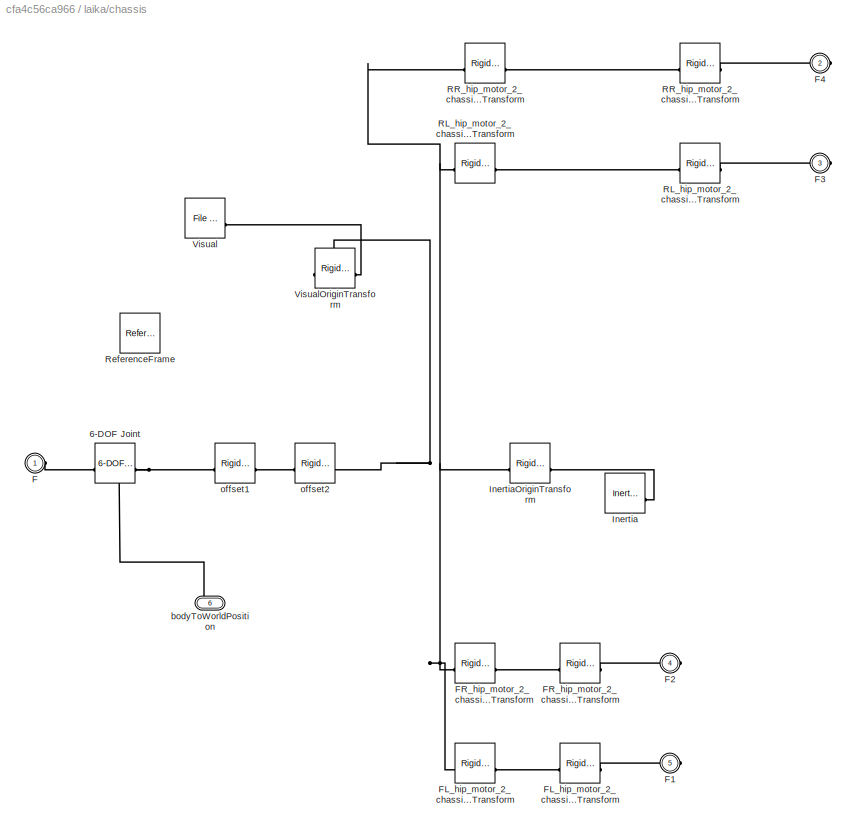
BLOCK [SubSystem] laika/chassis
  PortSchema = {"entries":[{"content":{"sides":[{"content":{"connectorIds":["LConn1"]},"type":"ConnectorPlacement.EquallySpacedRectSide","uuid":"e8b07a4b-cdda-468b-a417-21e1e893ca66"},{"content":{"connectorIds":["RConn1","RConn2","RConn3","RConn4"],"side":"RIGHT"},"type":"ConnectorPlacement.EquallySpacedRectSide","uuid":"0565d4ec-0cbc-4c5e-bd83-3e7a8f475fde"},{"content":{"side":"TOP"},"type":"ConnectorPlacement....<+406ch>
BLOCK [Reference] laika/chassis/6-DOF Joint  REF=sm_lib/Joints/6-DOF Joint
  SourceBlock = sm_lib/Joints/6-DOF Joint
  SourceType = 6-DOF Joint
BLOCK [PMIOPort] laika/chassis/F
  Side = Left
BLOCK [PMIOPort] laika/chassis/F1
  Port = 5
  Side = Right
BLOCK [PMIOPort] laika/chassis/F2
  Port = 4
  Side = Right
BLOCK [PMIOPort] laika/chassis/F3
  Port = 3
  Side = Right
BLOCK [PMIOPort] laika/chassis/F4
  Port = 2
  Side = Right
BLOCK [Reference] laika/chassis/FL_hip_motor_2_chassis_joint_AxisTransform  REF=sm_lib/Frames and
Transforms/Rigid
Transform
  SourceBlock = sm_lib/Frames and\nTransforms/Rigid\nTransform
  SourceType = Rigid\nTransform
BLOCK [Reference] laika/chassis/FL_hip_motor_2_chassis_joint_OriginTransform  REF=sm_lib/Frames and
Transforms/Rigid
Transform
  SourceBlock = sm_lib/Frames and\nTransforms/Rigid\nTransform
  SourceType = Rigid\nTransform
BLOCK [Reference] laika/chassis/FR_hip_motor_2_chassis_joint_AxisTransform  REF=sm_lib/Frames and
Transforms/Rigid
Transform
  SourceBlock = sm_lib/Frames and\nTransforms/Rigid\nTransform
  SourceType = Rigid\nTransform
BLOCK [Reference] laika/chassis/FR_hip_motor_2_chassis_joint_OriginTransform  REF=sm_lib/Frames and
Transforms/Rigid
Transform
  SourceBlock = sm_lib/Frames and\nTransforms/Rigid\nTransform
  SourceType = Rigid\nTransform
BLOCK [Reference] laika/chassis/Inertia  REF=sm_lib/Body Elements/Inertia
  SourceBlock = sm_lib/Body Elements/Inertia
  SourceType = Inertia
BLOCK [Reference] laika/chassis/InertiaOriginTransform  REF=sm_lib/Frames and
Transforms/Rigid
Transform
  SourceBlock = sm_lib/Frames and\nTransforms/Rigid\nTransform
  SourceType = Rigid\nTransform
BLOCK [Reference] laika/chassis/RL_hip_motor_2_chassis_joint_AxisTransform  REF=sm_lib/Frames and
Transforms/Rigid
Transform
  SourceBlock = sm_lib/Frames and\nTransforms/Rigid\nTransform
  SourceType = Rigid\nTransform
BLOCK [Reference] laika/chassis/RL_hip_motor_2_chassis_joint_OriginTransform  REF=sm_lib/Frames and
Transforms/Rigid
Transform
  SourceBlock = sm_lib/Frames and\nTransforms/Rigid\nTransform
  SourceType = Rigid\nTransform
BLOCK [Reference] laika/chassis/RR_hip_motor_2_chassis_joint_AxisTransform  REF=sm_lib/Frames and
Transforms/Rigid
Transform
  SourceBlock = sm_lib/Frames and\nTransforms/Rigid\nTransform
  SourceType = Rigid\nTransform
BLOCK [Reference] laika/chassis/RR_hip_motor_2_chassis_joint_OriginTransform  REF=sm_lib/Frames and
Transforms/Rigid
Transform
  SourceBlock = sm_lib/Frames and\nTransforms/Rigid\nTransform
  SourceType = Rigid\nTransform
BLOCK [Reference] laika/chassis/ReferenceFrame  REF=sm_lib/Frames and
Transforms/Reference
Frame
  NameLocation = left
  SourceBlock = sm_lib/Frames and\nTransforms/Reference\nFrame
  SourceType = Reference\nFrame
BLOCK [Reference] laika/chassis/Visual  REF=sm_lib/Body Elements/File Solid
  SourceBlock = sm_lib/Body Elements/File Solid
  SourceType = File Solid
BLOCK [Reference] laika/chassis/VisualOriginTransform  REF=sm_lib/Frames and
Transforms/Rigid
Transform
  SourceBlock = sm_lib/Frames and\nTransforms/Rigid\nTransform
  SourceType = Rigid\nTransform
BLOCK [PMIOPort] laika/chassis/bodyToWorldPosition
  Port = 6
  Side = Right
BLOCK [Reference] laika/chassis/offset1  REF=sm_lib/Frames and
Transforms/Rigid
Transform
  SourceBlock = sm_lib/Frames and\nTransforms/Rigid\nTransform
  SourceType = Rigid\nTransform
BLOCK [Reference] laika/chassis/offset2  REF=sm_lib/Frames and
Transforms/Rigid
Transform
  SourceBlock = sm_lib/Frames and\nTransforms/Rigid\nTransform
  SourceType = Rigid\nTransform
BLOCK [Inport] laika/inputFB
  Port = 3
BLOCK [Inport] laika/inputFL
  Port = 4
BLOCK [Inport] laika/inputRR
BLOCK [Reference] laika/offset  REF=sm_lib/Frames and
Transforms/Rigid
Transform
  NameLocation = left
  SourceBlock = sm_lib/Frames and\nTransforms/Rigid\nTransform
  SourceType = Rigid\nTransform
BLOCK [Outport] laika/sensors
LINE Bus Selector:1 -> Scope:1
LINE Bus Selector:2 -> Scope:2
LINE Bus Selector:3 -> Scope:3
LINE Bus Selector:4 -> Scope1:1
LINE Bus Selector:5 -> Scope1:2
LINE Bus Selector:6 -> Scope1:3
LINE Calculate Observation/Bus Selector:1 -> Calculate Observation/Mux:1
LINE Calculate Observation/Bus Selector:10 -> Calculate Observation/Mux:10
LINE Calculate Observation/Bus Selector:11 -> Calculate Observation/Mux:11
LINE Calculate Observation/Bus Selector:12 -> Calculate Observation/Mux:12
LINE Calculate Observation/Bus Selector:13 -> Calculate Observation/Mux:13
LINE Calculate Observation/Bus Selector:14 -> Calculate Observation/Mux:14
LINE Calculate Observation/Bus Selector:15 -> Calculate Observation/Mux:15
LINE Calculate Observation/Bus Selector:16 -> Calculate Observation/Mux:16
LINE Calculate Observation/Bus Selector:17 -> Calculate Observation/Mux:17
LINE Calculate Observation/Bus Selector:18 -> Calculate Observation/Mux:18
LINE Calculate Observation/Bus Selector:19 -> Calculate Observation/Compare To Zero:1
LINE Calculate Observation/Bus Selector:2 -> Calculate Observation/Mux:2
LINE Calculate Observation/Bus Selector:20 -> Calculate Observation/Mux:20
LINE Calculate Observation/Bus Selector:21 -> Calculate Observation/Mux:21
LINE Calculate Observation/Bus Selector:22 -> Calculate Observation/Mux:22
LINE Calculate Observation/Bus Selector:23 -> Calculate Observation/Mux:23
LINE Calculate Observation/Bus Selector:24 -> Calculate Observation/Mux:24
LINE Calculate Observation/Bus Selector:25 -> Calculate Observation/Mux:25
LINE Calculate Observation/Bus Selector:26 -> Calculate Observation/Compare To Zero1:1
LINE Calculate Observation/Bus Selector:27 -> Calculate Observation/Mux:27
LINE Calculate Observation/Bus Selector:28 -> Calculate Observation/Mux:28
LINE Calculate Observation/Bus Selector:29 -> Calculate Observation/Mux:29
LINE Calculate Observation/Bus Selector:3 -> Calculate Observation/Mux:3
LINE Calculate Observation/Bus Selector:30 -> Calculate Observation/Mux:30
LINE Calculate Observation/Bus Selector:31 -> Calculate Observation/Mux:31
LINE Calculate Observation/Bus Selector:32 -> Calculate Observation/Mux:32
LINE Calculate Observation/Bus Selector:33 -> Calculate Observation/Compare To Zero2:1
LINE Calculate Observation/Bus Selector:34 -> Calculate Observation/Mux:34
LINE Calculate Observation/Bus Selector:35 -> Calculate Observation/Mux:35
LINE Calculate Observation/Bus Selector:36 -> Calculate Observation/Mux:36
LINE Calculate Observation/Bus Selector:37 -> Calculate Observation/Mux:37
LINE Calculate Observation/Bus Selector:38 -> Calculate Observation/Mux:38
LINE Calculate Observation/Bus Selector:39 -> Calculate Observation/Mux:39
LINE Calculate Observation/Bus Selector:4 -> Calculate Observation/Mux:4
LINE Calculate Observation/Bus Selector:40 -> Calculate Observation/Compare To Zero3:1
LINE Calculate Observation/Bus Selector:5 -> Calculate Observation/Mux:5
LINE Calculate Observation/Bus Selector:6 -> Calculate Observation/Subtract Initial Height:1
LINE Calculate Observation/Bus Selector:7 -> Calculate Observation/Mux:7
LINE Calculate Observation/Bus Selector:8 -> Calculate Observation/Mux:8
LINE Calculate Observation/Bus Selector:9 -> Calculate Observation/Mux:9
LINE Calculate Observation/Compare To Zero1:1 -> Calculate Observation/Data Type Conversion1:1
LINE Calculate Observation/Compare To Zero2:1 -> Calculate Observation/Data Type Conversion2:1
LINE Calculate Observation/Compare To Zero3:1 -> Calculate Observation/Data Type Conversion3:1
LINE Calculate Observation/Compare To Zero:1 -> Calculate Observation/Data Type Conversion:1
LINE Calculate Observation/Data Type Conversion1:1 -> Calculate Observation/Mux:26
LINE Calculate Observation/Data Type Conversion2:1 -> Calculate Observation/Mux:33
LINE Calculate Observation/Data Type Conversion3:1 -> Calculate Observation/Mux:40
LINE Calculate Observation/Data Type Conversion:1 -> Calculate Observation/Mux:19
LINE Calculate Observation/Mux:1 -> Calculate Observation/Rate Transition:1
LINE Calculate Observation/Rate Transition:1 -> Calculate Observation/observation:1
LINE Calculate Observation/Scale Height:1 -> Calculate Observation/Mux:6
LINE Calculate Observation/Subtract Initial Height:1 -> Calculate Observation/Scale Height:1
LINE Calculate Observation/meas:1 -> Calculate Observation/Bus Selector:1
LINE Calculate Observation/prevAct:1 -> Calculate Observation/Mux:41
LINE Calculate Observation:1 -> RLAgent:1
LINE Check if Done/Abs1:1 -> Check if Done/Compare To Constant1:1
LINE Check if Done/Abs2:1 -> Check if Done/Compare To Constant2:1
LINE Check if Done/Abs3:1 -> Check if Done/Detect Lateral Motion:1
LINE Check if Done/Abs:1 -> Check if Done/Compare To Constant:1
LINE Check if Done/Bus Selector:1 -> Check if Done/Abs3:1
LINE Check if Done/Bus Selector:2 -> Check if Done/Detect Fallen Robot:1
LINE Check if Done/Bus Selector:3 -> Check if Done/Abs:1
LINE Check if Done/Bus Selector:4 -> Check if Done/Abs1:1
LINE Check if Done/Bus Selector:5 -> Check if Done/Abs2:1
LINE Check if Done/Compare To Constant1:1 -> Check if Done/Logical Operator:4
LINE Check if Done/Compare To Constant2:1 -> Check if Done/Logical Operator:5
LINE Check if Done/Compare To Constant:1 -> Check if Done/Logical Operator:3
LINE Check if Done/Detect Fallen Robot:1 -> Check if Done/Logical Operator:2
LINE Check if Done/Detect Lateral Motion:1 -> Check if Done/Logical Operator:1
LINE Check if Done/Logical Operator:1 -> Check if Done/Rate Transition:1
LINE Check if Done/Rate Transition:1 -> Check if Done/isdone:1
LINE Check if Done/meas:1 -> Check if Done/Bus Selector:1
LINE Check if Done:1 -> RLAgent:3
NET Demux:1 -> Actions:1, laika:1
NET Demux:2 -> Actions:2, laika:2
NET Demux:3 -> Actions:3, laika:3
NET Demux:4 -> Actions:4, laika:4
LINE MATLAB Function:1 -> RLAgent:2
NET RLAgent:1 -> Demux:1, Unit Delay:1
LINE RLAgent:2 -> Cumulative Reward:1
NET Unit Delay:1 -> Calculate Observation:2, MATLAB Function:2
LINE laika/InputRL:1 -> laika/RL:1
LINE laika/RL/Bus Creator:1 -> laika/RL/meas:1
LINE laika/RL/Demux:1 -> laika/RL/Gain:1
LINE laika/RL/Demux:2 -> laika/RL/Gain1:1
LINE laika/RL/Demux:3 -> laika/RL/Gain2:1
LINE laika/RL/Gain1:1 -> laika/RL/Subsystem1:1
LINE laika/RL/Gain2:1 -> laika/RL/Subsystem2:1
LINE laika/RL/Gain:1 -> laika/RL/Subsystem:1
LINE laika/RL/InputRL:1 -> laika/RL/Demux:1
LINE laika/RL/Subsystem/Bus Creator:1 -> laika/RL/Subsystem/Sensor:1
LINE laika/RL/Subsystem/PS-Simulink Converter1:1 -> laika/RL/Subsystem/Bus Creator:2
LINE laika/RL/Subsystem/PS-Simulink Converter2:1 -> laika/RL/Subsystem/Bus Creator:3
NET laika/RL/Subsystem/torque:1 -> laika/RL/Subsystem/Bus Creator:1, laika/RL/Subsystem/Simulink-PS Converter:1
LINE laika/RL/Subsystem1/Bus Creator:1 -> laika/RL/Subsystem1/Sensor:1
LINE laika/RL/Subsystem1/PS-Simulink Converter1:1 -> laika/RL/Subsystem1/Bus Creator:2
LINE laika/RL/Subsystem1/PS-Simulink Converter2:1 -> laika/RL/Subsystem1/Bus Creator:3
NET laika/RL/Subsystem1/torque:1 -> laika/RL/Subsystem1/Bus Creator:1, laika/RL/Subsystem1/Simulink-PS Converter:1
LINE laika/RL/Subsystem1:1 -> laika/RL/Bus Creator:2
LINE laika/RL/Subsystem2/Bus Creator:1 -> laika/RL/Subsystem2/Sensor:1
LINE laika/RL/Subsystem2/PS-Simulink Converter1:1 -> laika/RL/Subsystem2/Bus Creator:2
LINE laika/RL/Subsystem2/PS-Simulink Converter2:1 -> laika/RL/Subsystem2/Bus Creator:3
NET laika/RL/Subsystem2/torque:1 -> laika/RL/Subsystem2/Bus Creator:1, laika/RL/Subsystem2/Simulink-PS Converter:1
LINE laika/RL/Subsystem2:1 -> laika/RL/Bus Creator:3
LINE laika/RL/Subsystem:1 -> laika/RL/Bus Creator:1
LINE laika/RL/toeRL/Bus Creator:1 -> laika/RL/toeRL/Terminator:1
LINE laika/RL/toeRL/PS-Simulink Converter1:1 -> laika/RL/toeRL/Ff:1
LINE laika/RL/toeRL/PS-Simulink Converter2:1 -> laika/RL/toeRL/Bus Creator:1
LINE laika/RL/toeRL/PS-Simulink Converter3:1 -> laika/RL/toeRL/Bus Creator:2
LINE laika/RL/toeRL/PS-Simulink Converter4:1 -> laika/RL/toeRL/Bus Creator:3
LINE laika/RL/toeRL/PS-Simulink Converter:1 -> laika/RL/toeRL/Fn:1
LINE laika/RL/toeRL:1 -> laika/RL/Bus Creator:4
LINE laika/RL/toeRL:2 -> laika/RL/Bus Creator:5
LINE laika/RL:1 -> laika/Sensors:2
LINE laika/RR/Bus Creator:1 -> laika/RR/meas:1
LINE laika/RR/Demux:1 -> laika/RR/Gain:1
LINE laika/RR/Demux:2 -> laika/RR/Gain1:1
LINE laika/RR/Demux:3 -> laika/RR/Gain2:1
LINE laika/RR/Gain1:1 -> laika/RR/Subsystem1:1
LINE laika/RR/Gain2:1 -> laika/RR/Subsystem2:1
LINE laika/RR/Gain:1 -> laika/RR/Subsystem:1
LINE laika/RR/InputRR:1 -> laika/RR/Demux:1
LINE laika/RR/Subsystem/Bus Creator:1 -> laika/RR/Subsystem/Sensor:1
LINE laika/RR/Subsystem/PS-Simulink Converter1:1 -> laika/RR/Subsystem/Bus Creator:2
LINE laika/RR/Subsystem/PS-Simulink Converter2:1 -> laika/RR/Subsystem/Bus Creator:3
NET laika/RR/Subsystem/torque:1 -> laika/RR/Subsystem/Bus Creator:1, laika/RR/Subsystem/Simulink-PS Converter:1
LINE laika/RR/Subsystem1/Bus Creator:1 -> laika/RR/Subsystem1/Sensor:1
LINE laika/RR/Subsystem1/PS-Simulink Converter1:1 -> laika/RR/Subsystem1/Bus Creator:2
LINE laika/RR/Subsystem1/PS-Simulink Converter2:1 -> laika/RR/Subsystem1/Bus Creator:3
NET laika/RR/Subsystem1/torque:1 -> laika/RR/Subsystem1/Bus Creator:1, laika/RR/Subsystem1/Simulink-PS Converter:1
LINE laika/RR/Subsystem1:1 -> laika/RR/Bus Creator:2
LINE laika/RR/Subsystem2/Bus Creator:1 -> laika/RR/Subsystem2/Sensor:1
LINE laika/RR/Subsystem2/PS-Simulink Converter1:1 -> laika/RR/Subsystem2/Bus Creator:2
LINE laika/RR/Subsystem2/PS-Simulink Converter2:1 -> laika/RR/Subsystem2/Bus Creator:3
NET laika/RR/Subsystem2/torque:1 -> laika/RR/Subsystem2/Bus Creator:1, laika/RR/Subsystem2/Simulink-PS Converter:1
LINE laika/RR/Subsystem2:1 -> laika/RR/Bus Creator:3
LINE laika/RR/Subsystem:1 -> laika/RR/Bus Creator:1
LINE laika/RR/toeRR/Bus Creator:1 -> laika/RR/toeRR/Terminator:1
LINE laika/RR/toeRR/PS-Simulink Converter1:1 -> laika/RR/toeRR/Ff:1
LINE laika/RR/toeRR/PS-Simulink Converter2:1 -> laika/RR/toeRR/Bus Creator:1
LINE laika/RR/toeRR/PS-Simulink Converter3:1 -> laika/RR/toeRR/Bus Creator:2
LINE laika/RR/toeRR/PS-Simulink Converter4:1 -> laika/RR/toeRR/Bus Creator:3
LINE laika/RR/toeRR/PS-Simulink Converter:1 -> laika/RR/toeRR/Fn:1
LINE laika/RR/toeRR:1 -> laika/RR/Bus Creator:4
LINE laika/RR/toeRR:2 -> laika/RR/Bus Creator:5
LINE laika/RR:1 -> laika/Sensors:1
LINE laika/Sensors/Bus Creator:1 -> laika/Sensors/sensors:1
LINE laika/Sensors/Demux:1 -> laika/Sensors/Bus Creator:1
LINE laika/Sensors/Demux:2 -> laika/Sensors/Bus Creator:2
LINE laika/Sensors/Demux:3 -> laika/Sensors/Bus Creator:3
LINE laika/Sensors/MATLAB Function:1 -> laika/Sensors/Demux:1
LINE laika/Sensors/PS-Simulink Converter13:1 -> laika/Sensors/Bus Creator:9
LINE laika/Sensors/PS-Simulink Converter14:1 -> laika/Sensors/Bus Creator:13
LINE laika/Sensors/PS-Simulink Converter15:1 -> laika/Sensors/Bus Creator:14
LINE laika/Sensors/PS-Simulink Converter16:1 -> laika/Sensors/Bus Creator:15
LINE laika/Sensors/PS-Simulink Converter1:1 -> laika/Sensors/Bus Creator:4
LINE laika/Sensors/PS-Simulink Converter2:1 -> laika/Sensors/Bus Creator:5
LINE laika/Sensors/PS-Simulink Converter3:1 -> laika/Sensors/MATLAB Function:1
LINE laika/Sensors/PS-Simulink Converter4:1 -> laika/Sensors/Bus Creator:6
LINE laika/Sensors/PS-Simulink Converter5:1 -> laika/Sensors/Bus Creator:10
LINE laika/Sensors/PS-Simulink Converter6:1 -> laika/Sensors/Bus Creator:11
LINE laika/Sensors/PS-Simulink Converter7:1 -> laika/Sensors/Bus Creator:7
LINE laika/Sensors/PS-Simulink Converter8:1 -> laika/Sensors/Bus Creator:8
LINE laika/Sensors/PS-Simulink Converter9:1 -> laika/Sensors/Bus Creator:12
LINE laika/Sensors/measFB:1 -> laika/Sensors/Bus Creator:18
LINE laika/Sensors/measFL:1 -> laika/Sensors/Bus Creator:19
LINE laika/Sensors/measRL:1 -> laika/Sensors/Bus Creator:17
LINE laika/Sensors/measRR:1 -> laika/Sensors/Bus Creator:16
LINE laika/Sensors:1 -> laika/sensors:1
LINE laika/Subsystem/Bus Creator:1 -> laika/Subsystem/meas:1
LINE laika/Subsystem/Demux:1 -> laika/Subsystem/Gain:1
LINE laika/Subsystem/Demux:2 -> laika/Subsystem/Gain1:1
LINE laika/Subsystem/Demux:3 -> laika/Subsystem/Gain2:1
LINE laika/Subsystem/Gain1:1 -> laika/Subsystem/Subsystem1:1
LINE laika/Subsystem/Gain2:1 -> laika/Subsystem/Subsystem2:1
LINE laika/Subsystem/Gain:1 -> laika/Subsystem/Subsystem:1
LINE laika/Subsystem/InputFB:1 -> laika/Subsystem/Demux:1
LINE laika/Subsystem/Subsystem/Bus Creator:1 -> laika/Subsystem/Subsystem/Sensor:1
LINE laika/Subsystem/Subsystem/PS-Simulink Converter1:1 -> laika/Subsystem/Subsystem/Bus Creator:2
LINE laika/Subsystem/Subsystem/PS-Simulink Converter2:1 -> laika/Subsystem/Subsystem/Bus Creator:3
NET laika/Subsystem/Subsystem/torque:1 -> laika/Subsystem/Subsystem/Bus Creator:1, laika/Subsystem/Subsystem/Simulink-PS Converter:1
LINE laika/Subsystem/Subsystem1/Bus Creator:1 -> laika/Subsystem/Subsystem1/Sensor:1
LINE laika/Subsystem/Subsystem1/PS-Simulink Converter1:1 -> laika/Subsystem/Subsystem1/Bus Creator:2
LINE laika/Subsystem/Subsystem1/PS-Simulink Converter2:1 -> laika/Subsystem/Subsystem1/Bus Creator:3
NET laika/Subsystem/Subsystem1/torque:1 -> laika/Subsystem/Subsystem1/Bus Creator:1, laika/Subsystem/Subsystem1/Simulink-PS Converter:1
LINE laika/Subsystem/Subsystem1:1 -> laika/Subsystem/Bus Creator:2
LINE laika/Subsystem/Subsystem2/Bus Creator:1 -> laika/Subsystem/Subsystem2/Sensor:1
LINE laika/Subsystem/Subsystem2/PS-Simulink Converter1:1 -> laika/Subsystem/Subsystem2/Bus Creator:2
LINE laika/Subsystem/Subsystem2/PS-Simulink Converter2:1 -> laika/Subsystem/Subsystem2/Bus Creator:3
NET laika/Subsystem/Subsystem2/torque:1 -> laika/Subsystem/Subsystem2/Bus Creator:1, laika/Subsystem/Subsystem2/Simulink-PS Converter:1
LINE laika/Subsystem/Subsystem2:1 -> laika/Subsystem/Bus Creator:3
LINE laika/Subsystem/Subsystem:1 -> laika/Subsystem/Bus Creator:1
LINE laika/Subsystem/toeFR/Bus Creator:1 -> laika/Subsystem/toeFR/Terminator:1
LINE laika/Subsystem/toeFR/PS-Simulink Converter1:1 -> laika/Subsystem/toeFR/Ff:1
LINE laika/Subsystem/toeFR/PS-Simulink Converter2:1 -> laika/Subsystem/toeFR/Bus Creator:1
LINE laika/Subsystem/toeFR/PS-Simulink Converter3:1 -> laika/Subsystem/toeFR/Bus Creator:2
LINE laika/Subsystem/toeFR/PS-Simulink Converter4:1 -> laika/Subsystem/toeFR/Bus Creator:3
LINE laika/Subsystem/toeFR/PS-Simulink Converter:1 -> laika/Subsystem/toeFR/Fn:1
LINE laika/Subsystem/toeFR:1 -> laika/Subsystem/Bus Creator:4
LINE laika/Subsystem/toeFR:2 -> laika/Subsystem/Bus Creator:5
LINE laika/Subsystem1/Bus Creator:1 -> laika/Subsystem1/meas:1
LINE laika/Subsystem1/Demux:1 -> laika/Subsystem1/Gain:1
LINE laika/Subsystem1/Demux:2 -> laika/Subsystem1/Gain1:1
LINE laika/Subsystem1/Demux:3 -> laika/Subsystem1/Gain2:1
LINE laika/Subsystem1/Gain1:1 -> laika/Subsystem1/Subsystem1:1
LINE laika/Subsystem1/Gain2:1 -> laika/Subsystem1/Subsystem2:1
LINE laika/Subsystem1/Gain:1 -> laika/Subsystem1/Subsystem:1
LINE laika/Subsystem1/InputFL:1 -> laika/Subsystem1/Demux:1
LINE laika/Subsystem1/Subsystem/Bus Creator:1 -> laika/Subsystem1/Subsystem/Sensor:1
LINE laika/Subsystem1/Subsystem/PS-Simulink Converter1:1 -> laika/Subsystem1/Subsystem/Bus Creator:2
LINE laika/Subsystem1/Subsystem/PS-Simulink Converter2:1 -> laika/Subsystem1/Subsystem/Bus Creator:3
NET laika/Subsystem1/Subsystem/torque:1 -> laika/Subsystem1/Subsystem/Bus Creator:1, laika/Subsystem1/Subsystem/Simulink-PS Converter:1
LINE laika/Subsystem1/Subsystem1/Bus Creator:1 -> laika/Subsystem1/Subsystem1/Sensor:1
LINE laika/Subsystem1/Subsystem1/PS-Simulink Converter1:1 -> laika/Subsystem1/Subsystem1/Bus Creator:2
LINE laika/Subsystem1/Subsystem1/PS-Simulink Converter2:1 -> laika/Subsystem1/Subsystem1/Bus Creator:3
NET laika/Subsystem1/Subsystem1/torque:1 -> laika/Subsystem1/Subsystem1/Bus Creator:1, laika/Subsystem1/Subsystem1/Simulink-PS Converter:1
LINE laika/Subsystem1/Subsystem1:1 -> laika/Subsystem1/Bus Creator:2
LINE laika/Subsystem1/Subsystem2/Bus Creator:1 -> laika/Subsystem1/Subsystem2/Sensor:1
LINE laika/Subsystem1/Subsystem2/PS-Simulink Converter1:1 -> laika/Subsystem1/Subsystem2/Bus Creator:2
LINE laika/Subsystem1/Subsystem2/PS-Simulink Converter2:1 -> laika/Subsystem1/Subsystem2/Bus Creator:3
NET laika/Subsystem1/Subsystem2/torque:1 -> laika/Subsystem1/Subsystem2/Bus Creator:1, laika/Subsystem1/Subsystem2/Simulink-PS Converter:1
LINE laika/Subsystem1/Subsystem2:1 -> laika/Subsystem1/Bus Creator:3
LINE laika/Subsystem1/Subsystem:1 -> laika/Subsystem1/Bus Creator:1
LINE laika/Subsystem1/toeFL/Bus Creator:1 -> laika/Subsystem1/toeFL/Terminator:1
LINE laika/Subsystem1/toeFL/PS-Simulink Converter1:1 -> laika/Subsystem1/toeFL/Ff:1
LINE laika/Subsystem1/toeFL/PS-Simulink Converter2:1 -> laika/Subsystem1/toeFL/Bus Creator:1
LINE laika/Subsystem1/toeFL/PS-Simulink Converter3:1 -> laika/Subsystem1/toeFL/Bus Creator:2
LINE laika/Subsystem1/toeFL/PS-Simulink Converter4:1 -> laika/Subsystem1/toeFL/Bus Creator:3
LINE laika/Subsystem1/toeFL/PS-Simulink Converter:1 -> laika/Subsystem1/toeFL/Fn:1
LINE laika/Subsystem1/toeFL:1 -> laika/Subsystem1/Bus Creator:4
LINE laika/Subsystem1/toeFL:2 -> laika/Subsystem1/Bus Creator:5
LINE laika/Subsystem1:1 -> laika/Sensors:4
LINE laika/Subsystem:1 -> laika/Sensors:3
LINE laika/inputFB:1 -> laika/Subsystem:1
LINE laika/inputFL:1 -> laika/Subsystem1:1
LINE laika/inputRR:1 -> laika/RR:1
NET laika:1 -> Bus Selector:1, Calculate Observation:1, Check if Done:1, MATLAB Function:1
PNET net1: laika/MechanismConfiguration:RConn1 -- laika/Sensors:LConn1 -- laika/Solver Configuration:RConn1 -- laika/World:RConn1 -- laika/chassis:LConn1 -- laika/offset:RConn1
PLINE laika/RL/Conn1:RConn1 -- laika/RL/Subsystem:LConn1
PLINE laika/RL/G:RConn1 -- laika/RL/toeRL:RConn1
PLINE laika/RL/RL_hip_motor/F1:RConn1 -- laika/RL/RL_hip_motor/RL_upper_leg_2_hip_motor_joint_AxisTransform:RConn1
PLINE laika/RL/RL_hip_motor/F:RConn1 -- laika/RL/RL_hip_motor/RL_hip_motor_2_chassis_joint_AxisInvTransform:RConn1
PLINE laika/RL/RL_hip_motor/Inertia:RConn1 -- laika/RL/RL_hip_motor/InertiaOriginTransform:RConn1
PNET net2: laika/RL/RL_hip_motor/InertiaOriginTransform:LConn1 -- laika/RL/RL_hip_motor/RL_hip_motor_2_chassis_joint_AxisInvTransform:LConn1 -- laika/RL/RL_hip_motor/RL_upper_leg_2_hip_motor_joint_OriginTransform:LConn1 -- laika/RL/RL_hip_motor/ReferenceFrame:RConn1 -- laika/RL/RL_hip_motor/VisualOriginTransform:LConn1
PLINE laika/RL/RL_hip_motor/RL_upper_leg_2_hip_motor_joint_AxisTransform:LConn1 -- laika/RL/RL_hip_motor/RL_upper_leg_2_hip_motor_joint_OriginTransform:RConn1
PLINE laika/RL/RL_hip_motor/Visual:RConn1 -- laika/RL/RL_hip_motor/VisualOriginTransform:RConn1
PLINE laika/RL/RL_hip_motor:LConn1 -- laika/RL/Subsystem:RConn1
PLINE laika/RL/RL_hip_motor:RConn1 -- laika/RL/Subsystem1:LConn1
PLINE laika/RL/RL_lower_leg/F1:RConn1 -- laika/RL/RL_lower_leg/jtoeRL_OriginTransform:RConn1
PLINE laika/RL/RL_lower_leg/F:RConn1 -- laika/RL/RL_lower_leg/RL_lower_leg_2_upper_leg_joint_AxisInvTransform:RConn1
PLINE laika/RL/RL_lower_leg/Inertia:RConn1 -- laika/RL/RL_lower_leg/InertiaOriginTransform:RConn1
PNET net3: laika/RL/RL_lower_leg/InertiaOriginTransform:LConn1 -- laika/RL/RL_lower_leg/RL_lower_leg_2_upper_leg_joint_AxisInvTransform:LConn1 -- laika/RL/RL_lower_leg/ReferenceFrame:RConn1 -- laika/RL/RL_lower_leg/VisualOriginTransform:LConn1 -- laika/RL/RL_lower_leg/jtoeRL_OriginTransform:LConn1
PLINE laika/RL/RL_lower_leg/Visual:RConn1 -- laika/RL/RL_lower_leg/VisualOriginTransform:RConn1
PLINE laika/RL/RL_lower_leg:LConn1 -- laika/RL/Subsystem2:RConn1
PLINE laika/RL/RL_lower_leg:RConn1 -- laika/RL/jtoeRL:LConn1
PLINE laika/RL/RL_upper_leg/F1:RConn1 -- laika/RL/RL_upper_leg/RL_lower_leg_2_upper_leg_joint_AxisTransform:RConn1
PLINE laika/RL/RL_upper_leg/F:RConn1 -- laika/RL/RL_upper_leg/RL_upper_leg_2_hip_motor_joint_AxisInvTransform:RConn1
PLINE laika/RL/RL_upper_leg/Inertia:RConn1 -- laika/RL/RL_upper_leg/InertiaOriginTransform:RConn1
PNET net4: laika/RL/RL_upper_leg/InertiaOriginTransform:LConn1 -- laika/RL/RL_upper_leg/RL_lower_leg_2_upper_leg_joint_OriginTransform:LConn1 -- laika/RL/RL_upper_leg/RL_upper_leg_2_hip_motor_joint_AxisInvTransform:LConn1 -- laika/RL/RL_upper_leg/ReferenceFrame:RConn1 -- laika/RL/RL_upper_leg/VisualOriginTransform:LConn1
PLINE laika/RL/RL_upper_leg/RL_lower_leg_2_upper_leg_joint_AxisTransform:LConn1 -- laika/RL/RL_upper_leg/RL_lower_leg_2_upper_leg_joint_OriginTransform:RConn1
PLINE laika/RL/RL_upper_leg/Visual:RConn1 -- laika/RL/RL_upper_leg/VisualOriginTransform:RConn1
PLINE laika/RL/RL_upper_leg:LConn1 -- laika/RL/Subsystem1:RConn1
PLINE laika/RL/RL_upper_leg:RConn1 -- laika/RL/Subsystem2:LConn1
PLINE laika/RL/Subsystem/Conn1:RConn1 -- laika/RL/Subsystem/RL_hip_motor_2_chassis_joint:LConn1
PLINE laika/RL/Subsystem/Conn3:RConn1 -- laika/RL/Subsystem/RL_hip_motor_2_chassis_joint:RConn1
PLINE laika/RL/Subsystem/PS-Simulink Converter1:LConn1 -- laika/RL/Subsystem/RL_hip_motor_2_chassis_joint:RConn2
PLINE laika/RL/Subsystem/PS-Simulink Converter2:LConn1 -- laika/RL/Subsystem/RL_hip_motor_2_chassis_joint:RConn3
PLINE laika/RL/Subsystem/RL_hip_motor_2_chassis_joint:LConn2 -- laika/RL/Subsystem/Simulink-PS Converter:RConn1
PLINE laika/RL/Subsystem1/Conn1:RConn1 -- laika/RL/Subsystem1/RL_upper_leg_2_hip_motor_joint:RConn1
PLINE laika/RL/Subsystem1/Conn2:RConn1 -- laika/RL/Subsystem1/RL_upper_leg_2_hip_motor_joint:LConn1
PLINE laika/RL/Subsystem1/PS-Simulink Converter1:LConn1 -- laika/RL/Subsystem1/RL_upper_leg_2_hip_motor_joint:RConn2
PLINE laika/RL/Subsystem1/PS-Simulink Converter2:LConn1 -- laika/RL/Subsystem1/RL_upper_leg_2_hip_motor_joint:RConn3
PLINE laika/RL/Subsystem1/RL_upper_leg_2_hip_motor_joint:LConn2 -- laika/RL/Subsystem1/Simulink-PS Converter:RConn1
PLINE laika/RL/Subsystem2/Conn1:RConn1 -- laika/RL/Subsystem2/RL_lower_leg_2_upper_leg_joint:LConn1
PLINE laika/RL/Subsystem2/Conn2:RConn1 -- laika/RL/Subsystem2/RL_lower_leg_2_upper_leg_joint:RConn1
PLINE laika/RL/Subsystem2/PS-Simulink Converter1:LConn1 -- laika/RL/Subsystem2/RL_lower_leg_2_upper_leg_joint:RConn2
PLINE laika/RL/Subsystem2/PS-Simulink Converter2:LConn1 -- laika/RL/Subsystem2/RL_lower_leg_2_upper_leg_joint:RConn3
PLINE laika/RL/Subsystem2/RL_lower_leg_2_upper_leg_joint:LConn2 -- laika/RL/Subsystem2/Simulink-PS Converter:RConn1
PLINE laika/RL/jtoeRL:RConn1 -- laika/RL/toeRL:LConn1
PNET net5: laika/RL/toeRL/F:RConn1 -- laika/RL/toeRL/InertiaOriginTransform:LConn1 -- laika/RL/toeRL/ReferenceFrame:RConn1 -- laika/RL/toeRL/VisualOriginTransform:LConn1
PLINE laika/RL/toeRL/G:RConn1 -- laika/RL/toeRL/Spatial Contact Force:LConn1
PLINE laika/RL/toeRL/Inertia:RConn1 -- laika/RL/toeRL/InertiaOriginTransform:RConn1
PLINE laika/RL/toeRL/PS-Simulink Converter1:LConn1 -- laika/RL/toeRL/Spatial Contact Force:RConn3
PLINE laika/RL/toeRL/PS-Simulink Converter2:LConn1 -- laika/RL/toeRL/Transform Sensor:RConn2
PLINE laika/RL/toeRL/PS-Simulink Converter3:LConn1 -- laika/RL/toeRL/Transform Sensor:RConn3
PLINE laika/RL/toeRL/PS-Simulink Converter4:LConn1 -- laika/RL/toeRL/Transform Sensor:RConn4
PLINE laika/RL/toeRL/PS-Simulink Converter:LConn1 -- laika/RL/toeRL/Spatial Contact Force:RConn2
PLINE laika/RL/toeRL/Spatial Contact Force:RConn1 -- laika/RL/toeRL/Visual:LConn1
PLINE laika/RL/toeRL/Transform Sensor:LConn1 -- laika/RL/toeRL/World Frame:RConn1
PNET net6: laika/RL/toeRL/Transform Sensor:RConn1 -- laika/RL/toeRL/Visual:RConn1 -- laika/RL/toeRL/VisualOriginTransform:RConn1
PLINE laika/RL:LConn1 -- laika/chassis:RConn2
PNET net7: laika/RL:LConn2 -- laika/RR:LConn2 -- laika/Subsystem1:LConn2 -- laika/Subsystem:LConn2 -- laika/World Plane:LConn1
PLINE laika/RR/Conn1:RConn1 -- laika/RR/Subsystem:LConn1
PLINE laika/RR/G:RConn1 -- laika/RR/toeRR:RConn1
PLINE laika/RR/RR_hip_motor/F1:RConn1 -- laika/RR/RR_hip_motor/RR_upper_leg_2_hip_motor_joint_AxisTransform:RConn1
PLINE laika/RR/RR_hip_motor/F:RConn1 -- laika/RR/RR_hip_motor/RR_hip_motor_2_chassis_joint_AxisInvTransform:RConn1
PLINE laika/RR/RR_hip_motor/Inertia:RConn1 -- laika/RR/RR_hip_motor/InertiaOriginTransform:RConn1
PNET net8: laika/RR/RR_hip_motor/InertiaOriginTransform:LConn1 -- laika/RR/RR_hip_motor/RR_hip_motor_2_chassis_joint_AxisInvTransform:LConn1 -- laika/RR/RR_hip_motor/RR_upper_leg_2_hip_motor_joint_OriginTransform:LConn1 -- laika/RR/RR_hip_motor/ReferenceFrame:RConn1 -- laika/RR/RR_hip_motor/VisualOriginTransform:LConn1
PLINE laika/RR/RR_hip_motor/RR_upper_leg_2_hip_motor_joint_AxisTransform:LConn1 -- laika/RR/RR_hip_motor/RR_upper_leg_2_hip_motor_joint_OriginTransform:RConn1
PLINE laika/RR/RR_hip_motor/Visual:RConn1 -- laika/RR/RR_hip_motor/VisualOriginTransform:RConn1
PLINE laika/RR/RR_hip_motor:LConn1 -- laika/RR/Subsystem:RConn1
PLINE laika/RR/RR_hip_motor:RConn1 -- laika/RR/Subsystem1:LConn1
PLINE laika/RR/RR_lower_leg/F1:RConn1 -- laika/RR/RR_lower_leg/jtoeRR_OriginTransform:RConn1
PLINE laika/RR/RR_lower_leg/F:RConn1 -- laika/RR/RR_lower_leg/RR_lower_leg_2_upper_leg_joint_AxisInvTransform:RConn1
PLINE laika/RR/RR_lower_leg/Inertia:RConn1 -- laika/RR/RR_lower_leg/InertiaOriginTransform:RConn1
PNET net9: laika/RR/RR_lower_leg/InertiaOriginTransform:LConn1 -- laika/RR/RR_lower_leg/RR_lower_leg_2_upper_leg_joint_AxisInvTransform:LConn1 -- laika/RR/RR_lower_leg/ReferenceFrame:RConn1 -- laika/RR/RR_lower_leg/VisualOriginTransform:LConn1 -- laika/RR/RR_lower_leg/jtoeRR_OriginTransform:LConn1
PLINE laika/RR/RR_lower_leg/Visual:RConn1 -- laika/RR/RR_lower_leg/VisualOriginTransform:RConn1
PLINE laika/RR/RR_lower_leg:LConn1 -- laika/RR/Subsystem2:RConn1
PLINE laika/RR/RR_lower_leg:RConn1 -- laika/RR/jtoeRR:LConn1
PLINE laika/RR/RR_upper_leg/F1:RConn1 -- laika/RR/RR_upper_leg/RR_lower_leg_2_upper_leg_joint_AxisTransform:RConn1
PLINE laika/RR/RR_upper_leg/F:RConn1 -- laika/RR/RR_upper_leg/RR_upper_leg_2_hip_motor_joint_AxisInvTransform:RConn1
PLINE laika/RR/RR_upper_leg/Inertia:RConn1 -- laika/RR/RR_upper_leg/InertiaOriginTransform:RConn1
PNET net10: laika/RR/RR_upper_leg/InertiaOriginTransform:LConn1 -- laika/RR/RR_upper_leg/RR_lower_leg_2_upper_leg_joint_OriginTransform:LConn1 -- laika/RR/RR_upper_leg/RR_upper_leg_2_hip_motor_joint_AxisInvTransform:LConn1 -- laika/RR/RR_upper_leg/ReferenceFrame:RConn1 -- laika/RR/RR_upper_leg/VisualOriginTransform:LConn1
PLINE laika/RR/RR_upper_leg/RR_lower_leg_2_upper_leg_joint_AxisTransform:LConn1 -- laika/RR/RR_upper_leg/RR_lower_leg_2_upper_leg_joint_OriginTransform:RConn1
PLINE laika/RR/RR_upper_leg/Visual:RConn1 -- laika/RR/RR_upper_leg/VisualOriginTransform:RConn1
PLINE laika/RR/RR_upper_leg:LConn1 -- laika/RR/Subsystem1:RConn1
PLINE laika/RR/RR_upper_leg:RConn1 -- laika/RR/Subsystem2:LConn1
PLINE laika/RR/Subsystem/Conn1:RConn1 -- laika/RR/Subsystem/RR_hip_motor_2_chassis_joint:LConn1
PLINE laika/RR/Subsystem/Conn3:RConn1 -- laika/RR/Subsystem/RR_hip_motor_2_chassis_joint:RConn1
PLINE laika/RR/Subsystem/PS-Simulink Converter1:LConn1 -- laika/RR/Subsystem/RR_hip_motor_2_chassis_joint:RConn2
PLINE laika/RR/Subsystem/PS-Simulink Converter2:LConn1 -- laika/RR/Subsystem/RR_hip_motor_2_chassis_joint:RConn3
PLINE laika/RR/Subsystem/RR_hip_motor_2_chassis_joint:LConn2 -- laika/RR/Subsystem/Simulink-PS Converter:RConn1
PLINE laika/RR/Subsystem1/Conn1:RConn1 -- laika/RR/Subsystem1/RR_upper_leg_2_hip_motor_joint:RConn1
PLINE laika/RR/Subsystem1/Conn2:RConn1 -- laika/RR/Subsystem1/RR_upper_leg_2_hip_motor_joint:LConn1
PLINE laika/RR/Subsystem1/PS-Simulink Converter1:LConn1 -- laika/RR/Subsystem1/RR_upper_leg_2_hip_motor_joint:RConn2
PLINE laika/RR/Subsystem1/PS-Simulink Converter2:LConn1 -- laika/RR/Subsystem1/RR_upper_leg_2_hip_motor_joint:RConn3
PLINE laika/RR/Subsystem1/RR_upper_leg_2_hip_motor_joint:LConn2 -- laika/RR/Subsystem1/Simulink-PS Converter:RConn1
PLINE laika/RR/Subsystem2/Conn1:RConn1 -- laika/RR/Subsystem2/RR_lower_leg_2_upper_leg_joint:LConn1
PLINE laika/RR/Subsystem2/Conn2:RConn1 -- laika/RR/Subsystem2/RR_lower_leg_2_upper_leg_joint:RConn1
PLINE laika/RR/Subsystem2/PS-Simulink Converter1:LConn1 -- laika/RR/Subsystem2/RR_lower_leg_2_upper_leg_joint:RConn2
PLINE laika/RR/Subsystem2/PS-Simulink Converter2:LConn1 -- laika/RR/Subsystem2/RR_lower_leg_2_upper_leg_joint:RConn3
PLINE laika/RR/Subsystem2/RR_lower_leg_2_upper_leg_joint:LConn2 -- laika/RR/Subsystem2/Simulink-PS Converter:RConn1
PLINE laika/RR/jtoeRR:RConn1 -- laika/RR/toeRR:LConn1
PNET net11: laika/RR/toeRR/F:RConn1 -- laika/RR/toeRR/InertiaOriginTransform:LConn1 -- laika/RR/toeRR/ReferenceFrame:RConn1 -- laika/RR/toeRR/VisualOriginTransform:LConn1
PLINE laika/RR/toeRR/G:RConn1 -- laika/RR/toeRR/Spatial Contact Force:LConn1
PLINE laika/RR/toeRR/Inertia:RConn1 -- laika/RR/toeRR/InertiaOriginTransform:RConn1
PLINE laika/RR/toeRR/PS-Simulink Converter1:LConn1 -- laika/RR/toeRR/Spatial Contact Force:RConn3
PLINE laika/RR/toeRR/PS-Simulink Converter2:LConn1 -- laika/RR/toeRR/Transform Sensor:RConn2
PLINE laika/RR/toeRR/PS-Simulink Converter3:LConn1 -- laika/RR/toeRR/Transform Sensor:RConn3
PLINE laika/RR/toeRR/PS-Simulink Converter4:LConn1 -- laika/RR/toeRR/Transform Sensor:RConn4
PLINE laika/RR/toeRR/PS-Simulink Converter:LConn1 -- laika/RR/toeRR/Spatial Contact Force:RConn2
PLINE laika/RR/toeRR/Spatial Contact Force:RConn1 -- laika/RR/toeRR/Visual:LConn1
PLINE laika/RR/toeRR/Transform Sensor:LConn1 -- laika/RR/toeRR/World Frame:RConn1
PNET net12: laika/RR/toeRR/Transform Sensor:RConn1 -- laika/RR/toeRR/Visual:RConn1 -- laika/RR/toeRR/VisualOriginTransform:RConn1
PLINE laika/RR:LConn1 -- laika/chassis:RConn1
PNET net13: laika/Sensors/B:RConn1 -- laika/Sensors/Transform Sensor1:LConn1 -- laika/Sensors/Transform Sensor:LConn1
PNET net14: laika/Sensors/F:RConn1 -- laika/Sensors/Transform Sensor1:RConn1 -- laika/Sensors/Transform Sensor:RConn1
PLINE laika/Sensors/PS-Simulink Converter13:LConn1 -- laika/Sensors/Transform Sensor:RConn8
PLINE laika/Sensors/PS-Simulink Converter14:LConn1 -- laika/Sensors/Transform Sensor1:RConn2
PLINE laika/Sensors/PS-Simulink Converter15:LConn1 -- laika/Sensors/Transform Sensor1:RConn3
PLINE laika/Sensors/PS-Simulink Converter16:LConn1 -- laika/Sensors/Transform Sensor1:RConn4
PLINE laika/Sensors/PS-Simulink Converter1:LConn1 -- laika/Sensors/Transform Sensor:RConn3
PLINE laika/Sensors/PS-Simulink Converter2:LConn1 -- laika/Sensors/Transform Sensor:RConn4
PLINE laika/Sensors/PS-Simulink Converter3:LConn1 -- laika/Sensors/Transform Sensor:RConn2
PLINE laika/Sensors/PS-Simulink Converter4:LConn1 -- laika/Sensors/Transform Sensor:RConn5
PLINE laika/Sensors/PS-Simulink Converter5:LConn1 -- laika/Sensors/Transform Sensor:RConn9
PLINE laika/Sensors/PS-Simulink Converter6:LConn1 -- laika/Sensors/Transform Sensor:RConn10
PLINE laika/Sensors/PS-Simulink Converter7:LConn1 -- laika/Sensors/Transform Sensor:RConn6
PLINE laika/Sensors/PS-Simulink Converter8:LConn1 -- laika/Sensors/Transform Sensor:RConn7
PLINE laika/Sensors/PS-Simulink Converter9:LConn1 -- laika/Sensors/Transform Sensor:RConn11
PLINE laika/Sensors:RConn1 -- laika/chassis:RConn5
PLINE laika/Subsystem/Conn1:RConn1 -- laika/Subsystem/Subsystem:LConn1
PLINE laika/Subsystem/FR_hip_motor/F1:RConn1 -- laika/Subsystem/FR_hip_motor/FR_upper_leg_2_hip_motor_joint_AxisTransform:RConn1
PLINE laika/Subsystem/FR_hip_motor/F:RConn1 -- laika/Subsystem/FR_hip_motor/FR_hip_motor_2_chassis_joint_AxisInvTransform:RConn1
PNET net15: laika/Subsystem/FR_hip_motor/FR_hip_motor_2_chassis_joint_AxisInvTransform:LConn1 -- laika/Subsystem/FR_hip_motor/FR_upper_leg_2_hip_motor_joint_OriginTransform:LConn1 -- laika/Subsystem/FR_hip_motor/InertiaOriginTransform:LConn1 -- laika/Subsystem/FR_hip_motor/ReferenceFrame:RConn1 -- laika/Subsystem/FR_hip_motor/VisualOriginTransform:LConn1
PLINE laika/Subsystem/FR_hip_motor/FR_upper_leg_2_hip_motor_joint_AxisTransform:LConn1 -- laika/Subsystem/FR_hip_motor/FR_upper_leg_2_hip_motor_joint_OriginTransform:RConn1
PLINE laika/Subsystem/FR_hip_motor/Inertia:RConn1 -- laika/Subsystem/FR_hip_motor/InertiaOriginTransform:RConn1
PLINE laika/Subsystem/FR_hip_motor/Visual:RConn1 -- laika/Subsystem/FR_hip_motor/VisualOriginTransform:RConn1
PLINE laika/Subsystem/FR_hip_motor:LConn1 -- laika/Subsystem/Subsystem:RConn1
PLINE laika/Subsystem/FR_hip_motor:RConn1 -- laika/Subsystem/Subsystem1:LConn1
PLINE laika/Subsystem/FR_lower_leg/F1:RConn1 -- laika/Subsystem/FR_lower_leg/jtoeFR_OriginTransform:RConn1
PLINE laika/Subsystem/FR_lower_leg/F:RConn1 -- laika/Subsystem/FR_lower_leg/FR_lower_leg_2_upper_leg_joint_AxisInvTransform:RConn1
PNET net16: laika/Subsystem/FR_lower_leg/FR_lower_leg_2_upper_leg_joint_AxisInvTransform:LConn1 -- laika/Subsystem/FR_lower_leg/InertiaOriginTransform:LConn1 -- laika/Subsystem/FR_lower_leg/ReferenceFrame:RConn1 -- laika/Subsystem/FR_lower_leg/VisualOriginTransform:LConn1 -- laika/Subsystem/FR_lower_leg/jtoeFR_OriginTransform:LConn1
PLINE laika/Subsystem/FR_lower_leg/Inertia:RConn1 -- laika/Subsystem/FR_lower_leg/InertiaOriginTransform:RConn1
PLINE laika/Subsystem/FR_lower_leg/Visual:RConn1 -- laika/Subsystem/FR_lower_leg/VisualOriginTransform:RConn1
PLINE laika/Subsystem/FR_lower_leg:LConn1 -- laika/Subsystem/Subsystem2:RConn1
PLINE laika/Subsystem/FR_lower_leg:RConn1 -- laika/Subsystem/jtoeFR:LConn1
PLINE laika/Subsystem/FR_upper_leg/F1:RConn1 -- laika/Subsystem/FR_upper_leg/FR_lower_leg_2_upper_leg_joint_AxisTransform:RConn1
PLINE laika/Subsystem/FR_upper_leg/F:RConn1 -- laika/Subsystem/FR_upper_leg/FR_upper_leg_2_hip_motor_joint_AxisInvTransform:RConn1
PLINE laika/Subsystem/FR_upper_leg/FR_lower_leg_2_upper_leg_joint_AxisTransform:LConn1 -- laika/Subsystem/FR_upper_leg/FR_lower_leg_2_upper_leg_joint_OriginTransform:RConn1
PNET net17: laika/Subsystem/FR_upper_leg/FR_lower_leg_2_upper_leg_joint_OriginTransform:LConn1 -- laika/Subsystem/FR_upper_leg/FR_upper_leg_2_hip_motor_joint_AxisInvTransform:LConn1 -- laika/Subsystem/FR_upper_leg/InertiaOriginTransform:LConn1 -- laika/Subsystem/FR_upper_leg/ReferenceFrame:RConn1 -- laika/Subsystem/FR_upper_leg/VisualOriginTransform:LConn1
PLINE laika/Subsystem/FR_upper_leg/Inertia:RConn1 -- laika/Subsystem/FR_upper_leg/InertiaOriginTransform:RConn1
PLINE laika/Subsystem/FR_upper_leg/Visual:RConn1 -- laika/Subsystem/FR_upper_leg/VisualOriginTransform:RConn1
PLINE laika/Subsystem/FR_upper_leg:LConn1 -- laika/Subsystem/Subsystem1:RConn1
PLINE laika/Subsystem/FR_upper_leg:RConn1 -- laika/Subsystem/Subsystem2:LConn1
PLINE laika/Subsystem/G:RConn1 -- laika/Subsystem/toeFR:RConn1
PLINE laika/Subsystem/Subsystem/Conn1:RConn1 -- laika/Subsystem/Subsystem/FR_hip_motor_2_chassis_joint:LConn1
PLINE laika/Subsystem/Subsystem/Conn3:RConn1 -- laika/Subsystem/Subsystem/FR_hip_motor_2_chassis_joint:RConn1
PLINE laika/Subsystem/Subsystem/FR_hip_motor_2_chassis_joint:LConn2 -- laika/Subsystem/Subsystem/Simulink-PS Converter:RConn1
PLINE laika/Subsystem/Subsystem/FR_hip_motor_2_chassis_joint:RConn2 -- laika/Subsystem/Subsystem/PS-Simulink Converter1:LConn1
PLINE laika/Subsystem/Subsystem/FR_hip_motor_2_chassis_joint:RConn3 -- laika/Subsystem/Subsystem/PS-Simulink Converter2:LConn1
PLINE laika/Subsystem/Subsystem1/Conn1:RConn1 -- laika/Subsystem/Subsystem1/FR_upper_leg_2_hip_motor_joint:RConn1
PLINE laika/Subsystem/Subsystem1/Conn2:RConn1 -- laika/Subsystem/Subsystem1/FR_upper_leg_2_hip_motor_joint:LConn1
PLINE laika/Subsystem/Subsystem1/FR_upper_leg_2_hip_motor_joint:LConn2 -- laika/Subsystem/Subsystem1/Simulink-PS Converter:RConn1
PLINE laika/Subsystem/Subsystem1/FR_upper_leg_2_hip_motor_joint:RConn2 -- laika/Subsystem/Subsystem1/PS-Simulink Converter1:LConn1
PLINE laika/Subsystem/Subsystem1/FR_upper_leg_2_hip_motor_joint:RConn3 -- laika/Subsystem/Subsystem1/PS-Simulink Converter2:LConn1
PLINE laika/Subsystem/Subsystem2/Conn1:RConn1 -- laika/Subsystem/Subsystem2/FR_lower_leg_2_upper_leg_joint:LConn1
PLINE laika/Subsystem/Subsystem2/Conn2:RConn1 -- laika/Subsystem/Subsystem2/FR_lower_leg_2_upper_leg_joint:RConn1
PLINE laika/Subsystem/Subsystem2/FR_lower_leg_2_upper_leg_joint:LConn2 -- laika/Subsystem/Subsystem2/Simulink-PS Converter:RConn1
PLINE laika/Subsystem/Subsystem2/FR_lower_leg_2_upper_leg_joint:RConn2 -- laika/Subsystem/Subsystem2/PS-Simulink Converter1:LConn1
PLINE laika/Subsystem/Subsystem2/FR_lower_leg_2_upper_leg_joint:RConn3 -- laika/Subsystem/Subsystem2/PS-Simulink Converter2:LConn1
PLINE laika/Subsystem/jtoeFR:RConn1 -- laika/Subsystem/toeFR:LConn1
PNET net18: laika/Subsystem/toeFR/F:RConn1 -- laika/Subsystem/toeFR/InertiaOriginTransform:LConn1 -- laika/Subsystem/toeFR/ReferenceFrame:RConn1 -- laika/Subsystem/toeFR/VisualOriginTransform:LConn1
PLINE laika/Subsystem/toeFR/G:RConn1 -- laika/Subsystem/toeFR/Spatial Contact Force:LConn1
PLINE laika/Subsystem/toeFR/Inertia:RConn1 -- laika/Subsystem/toeFR/InertiaOriginTransform:RConn1
PLINE laika/Subsystem/toeFR/PS-Simulink Converter1:LConn1 -- laika/Subsystem/toeFR/Spatial Contact Force:RConn3
PLINE laika/Subsystem/toeFR/PS-Simulink Converter2:LConn1 -- laika/Subsystem/toeFR/Transform Sensor:RConn2
PLINE laika/Subsystem/toeFR/PS-Simulink Converter3:LConn1 -- laika/Subsystem/toeFR/Transform Sensor:RConn3
PLINE laika/Subsystem/toeFR/PS-Simulink Converter4:LConn1 -- laika/Subsystem/toeFR/Transform Sensor:RConn4
PLINE laika/Subsystem/toeFR/PS-Simulink Converter:LConn1 -- laika/Subsystem/toeFR/Spatial Contact Force:RConn2
PLINE laika/Subsystem/toeFR/Spatial Contact Force:RConn1 -- laika/Subsystem/toeFR/Visual:LConn1
PLINE laika/Subsystem/toeFR/Transform Sensor:LConn1 -- laika/Subsystem/toeFR/World Frame:RConn1
PNET net19: laika/Subsystem/toeFR/Transform Sensor:RConn1 -- laika/Subsystem/toeFR/Visual:RConn1 -- laika/Subsystem/toeFR/VisualOriginTransform:RConn1
PLINE laika/Subsystem1/Conn1:RConn1 -- laika/Subsystem1/Subsystem:LConn1
PLINE laika/Subsystem1/FL_hip_motor/F1:RConn1 -- laika/Subsystem1/FL_hip_motor/FL_upper_leg_2_hip_motor_joint_AxisTransform:RConn1
PLINE laika/Subsystem1/FL_hip_motor/F:RConn1 -- laika/Subsystem1/FL_hip_motor/FL_hip_motor_2_chassis_joint_AxisInvTransform:RConn1
PNET net20: laika/Subsystem1/FL_hip_motor/FL_hip_motor_2_chassis_joint_AxisInvTransform:LConn1 -- laika/Subsystem1/FL_hip_motor/FL_upper_leg_2_hip_motor_joint_OriginTransform:LConn1 -- laika/Subsystem1/FL_hip_motor/InertiaOriginTransform:LConn1 -- laika/Subsystem1/FL_hip_motor/ReferenceFrame:RConn1 -- laika/Subsystem1/FL_hip_motor/VisualOriginTransform:LConn1
PLINE laika/Subsystem1/FL_hip_motor/FL_upper_leg_2_hip_motor_joint_AxisTransform:LConn1 -- laika/Subsystem1/FL_hip_motor/FL_upper_leg_2_hip_motor_joint_OriginTransform:RConn1
PLINE laika/Subsystem1/FL_hip_motor/Inertia:RConn1 -- laika/Subsystem1/FL_hip_motor/InertiaOriginTransform:RConn1
PLINE laika/Subsystem1/FL_hip_motor/Visual:RConn1 -- laika/Subsystem1/FL_hip_motor/VisualOriginTransform:RConn1
PLINE laika/Subsystem1/FL_hip_motor:LConn1 -- laika/Subsystem1/Subsystem:RConn1
PLINE laika/Subsystem1/FL_hip_motor:RConn1 -- laika/Subsystem1/Subsystem1:LConn1
PLINE laika/Subsystem1/FL_lower_leg/F1:RConn1 -- laika/Subsystem1/FL_lower_leg/jtoeFL_OriginTransform:RConn1
PLINE laika/Subsystem1/FL_lower_leg/F:RConn1 -- laika/Subsystem1/FL_lower_leg/FL_lower_leg_2_upper_leg_joint_AxisInvTransform:RConn1
PNET net21: laika/Subsystem1/FL_lower_leg/FL_lower_leg_2_upper_leg_joint_AxisInvTransform:LConn1 -- laika/Subsystem1/FL_lower_leg/InertiaOriginTransform:LConn1 -- laika/Subsystem1/FL_lower_leg/ReferenceFrame:RConn1 -- laika/Subsystem1/FL_lower_leg/VisualOriginTransform:LConn1 -- laika/Subsystem1/FL_lower_leg/jtoeFL_OriginTransform:LConn1
PLINE laika/Subsystem1/FL_lower_leg/Inertia:RConn1 -- laika/Subsystem1/FL_lower_leg/InertiaOriginTransform:RConn1
PLINE laika/Subsystem1/FL_lower_leg/Visual:RConn1 -- laika/Subsystem1/FL_lower_leg/VisualOriginTransform:RConn1
PLINE laika/Subsystem1/FL_lower_leg:LConn1 -- laika/Subsystem1/Subsystem2:RConn1
PLINE laika/Subsystem1/FL_lower_leg:RConn1 -- laika/Subsystem1/jtoeFL:LConn1
PLINE laika/Subsystem1/FL_upper_leg/F1:RConn1 -- laika/Subsystem1/FL_upper_leg/FL_lower_leg_2_upper_leg_joint_AxisTransform:RConn1
PLINE laika/Subsystem1/FL_upper_leg/F:RConn1 -- laika/Subsystem1/FL_upper_leg/FL_upper_leg_2_hip_motor_joint_AxisInvTransform:RConn1
PLINE laika/Subsystem1/FL_upper_leg/FL_lower_leg_2_upper_leg_joint_AxisTransform:LConn1 -- laika/Subsystem1/FL_upper_leg/FL_lower_leg_2_upper_leg_joint_OriginTransform:RConn1
PNET net22: laika/Subsystem1/FL_upper_leg/FL_lower_leg_2_upper_leg_joint_OriginTransform:LConn1 -- laika/Subsystem1/FL_upper_leg/FL_upper_leg_2_hip_motor_joint_AxisInvTransform:LConn1 -- laika/Subsystem1/FL_upper_leg/InertiaOriginTransform:LConn1 -- laika/Subsystem1/FL_upper_leg/ReferenceFrame:RConn1 -- laika/Subsystem1/FL_upper_leg/VisualOriginTransform:LConn1
PLINE laika/Subsystem1/FL_upper_leg/Inertia:RConn1 -- laika/Subsystem1/FL_upper_leg/InertiaOriginTransform:RConn1
PLINE laika/Subsystem1/FL_upper_leg/Visual:RConn1 -- laika/Subsystem1/FL_upper_leg/VisualOriginTransform:RConn1
PLINE laika/Subsystem1/FL_upper_leg:LConn1 -- laika/Subsystem1/Subsystem1:RConn1
PLINE laika/Subsystem1/FL_upper_leg:RConn1 -- laika/Subsystem1/Subsystem2:LConn1
PLINE laika/Subsystem1/G:RConn1 -- laika/Subsystem1/toeFL:RConn1
PLINE laika/Subsystem1/Subsystem/Conn1:RConn1 -- laika/Subsystem1/Subsystem/FL_hip_motor_2_chassis_joint:LConn1
PLINE laika/Subsystem1/Subsystem/Conn3:RConn1 -- laika/Subsystem1/Subsystem/FL_hip_motor_2_chassis_joint:RConn1
PLINE laika/Subsystem1/Subsystem/FL_hip_motor_2_chassis_joint:LConn2 -- laika/Subsystem1/Subsystem/Simulink-PS Converter:RConn1
PLINE laika/Subsystem1/Subsystem/FL_hip_motor_2_chassis_joint:RConn2 -- laika/Subsystem1/Subsystem/PS-Simulink Converter1:LConn1
PLINE laika/Subsystem1/Subsystem/FL_hip_motor_2_chassis_joint:RConn3 -- laika/Subsystem1/Subsystem/PS-Simulink Converter2:LConn1
PLINE laika/Subsystem1/Subsystem1/Conn1:RConn1 -- laika/Subsystem1/Subsystem1/FL_upper_leg_2_hip_motor_joint:RConn1
PLINE laika/Subsystem1/Subsystem1/Conn2:RConn1 -- laika/Subsystem1/Subsystem1/FL_upper_leg_2_hip_motor_joint:LConn1
PLINE laika/Subsystem1/Subsystem1/FL_upper_leg_2_hip_motor_joint:LConn2 -- laika/Subsystem1/Subsystem1/Simulink-PS Converter:RConn1
PLINE laika/Subsystem1/Subsystem1/FL_upper_leg_2_hip_motor_joint:RConn2 -- laika/Subsystem1/Subsystem1/PS-Simulink Converter1:LConn1
PLINE laika/Subsystem1/Subsystem1/FL_upper_leg_2_hip_motor_joint:RConn3 -- laika/Subsystem1/Subsystem1/PS-Simulink Converter2:LConn1
PLINE laika/Subsystem1/Subsystem2/Conn1:RConn1 -- laika/Subsystem1/Subsystem2/FL_lower_leg_2_upper_leg_joint:LConn1
PLINE laika/Subsystem1/Subsystem2/Conn2:RConn1 -- laika/Subsystem1/Subsystem2/FL_lower_leg_2_upper_leg_joint:RConn1
PLINE laika/Subsystem1/Subsystem2/FL_lower_leg_2_upper_leg_joint:LConn2 -- laika/Subsystem1/Subsystem2/Simulink-PS Converter:RConn1
PLINE laika/Subsystem1/Subsystem2/FL_lower_leg_2_upper_leg_joint:RConn2 -- laika/Subsystem1/Subsystem2/PS-Simulink Converter1:LConn1
PLINE laika/Subsystem1/Subsystem2/FL_lower_leg_2_upper_leg_joint:RConn3 -- laika/Subsystem1/Subsystem2/PS-Simulink Converter2:LConn1
PLINE laika/Subsystem1/jtoeFL:RConn1 -- laika/Subsystem1/toeFL:LConn1
PNET net23: laika/Subsystem1/toeFL/F:RConn1 -- laika/Subsystem1/toeFL/InertiaOriginTransform:LConn1 -- laika/Subsystem1/toeFL/ReferenceFrame:RConn1 -- laika/Subsystem1/toeFL/VisualOriginTransform:LConn1
PLINE laika/Subsystem1/toeFL/G:RConn1 -- laika/Subsystem1/toeFL/Spatial Contact Force:LConn1
PLINE laika/Subsystem1/toeFL/Inertia:RConn1 -- laika/Subsystem1/toeFL/InertiaOriginTransform:RConn1
PLINE laika/Subsystem1/toeFL/PS-Simulink Converter1:LConn1 -- laika/Subsystem1/toeFL/Spatial Contact Force:RConn3
PLINE laika/Subsystem1/toeFL/PS-Simulink Converter2:LConn1 -- laika/Subsystem1/toeFL/Transform Sensor:RConn2
PLINE laika/Subsystem1/toeFL/PS-Simulink Converter3:LConn1 -- laika/Subsystem1/toeFL/Transform Sensor:RConn3
PLINE laika/Subsystem1/toeFL/PS-Simulink Converter4:LConn1 -- laika/Subsystem1/toeFL/Transform Sensor:RConn4
PLINE laika/Subsystem1/toeFL/PS-Simulink Converter:LConn1 -- laika/Subsystem1/toeFL/Spatial Contact Force:RConn2
PLINE laika/Subsystem1/toeFL/Spatial Contact Force:RConn1 -- laika/Subsystem1/toeFL/Visual:LConn1
PLINE laika/Subsystem1/toeFL/Transform Sensor:LConn1 -- laika/Subsystem1/toeFL/World Frame:RConn1
PNET net24: laika/Subsystem1/toeFL/Transform Sensor:RConn1 -- laika/Subsystem1/toeFL/Visual:RConn1 -- laika/Subsystem1/toeFL/VisualOriginTransform:RConn1
PLINE laika/Subsystem1:LConn1 -- laika/chassis:RConn4
PLINE laika/Subsystem:LConn1 -- laika/chassis:RConn3
PLINE laika/World Plane:RConn1 -- laika/offset:LConn1
PLINE laika/chassis/6-DOF Joint:LConn1 -- laika/chassis/F:RConn1
PNET net25: laika/chassis/6-DOF Joint:RConn1 -- laika/chassis/bodyToWorldPosition:RConn1 -- laika/chassis/offset1:LConn1
PLINE laika/chassis/F1:RConn1 -- laika/chassis/FL_hip_motor_2_chassis_joint_AxisTransform:RConn1
PLINE laika/chassis/F2:RConn1 -- laika/chassis/FR_hip_motor_2_chassis_joint_AxisTransform:RConn1
PLINE laika/chassis/F3:RConn1 -- laika/chassis/RL_hip_motor_2_chassis_joint_AxisTransform:RConn1
PLINE laika/chassis/F4:RConn1 -- laika/chassis/RR_hip_motor_2_chassis_joint_AxisTransform:RConn1
PLINE laika/chassis/FL_hip_motor_2_chassis_joint_AxisTransform:LConn1 -- laika/chassis/FL_hip_motor_2_chassis_joint_OriginTransform:RConn1
PNET net26: laika/chassis/FL_hip_motor_2_chassis_joint_OriginTransform:LConn1 -- laika/chassis/FR_hip_motor_2_chassis_joint_OriginTransform:LConn1 -- laika/chassis/InertiaOriginTransform:LConn1 -- laika/chassis/RL_hip_motor_2_chassis_joint_OriginTransform:LConn1 -- laika/chassis/RR_hip_motor_2_chassis_joint_OriginTransform:LConn1 -- laika/chassis/VisualOriginTransform:LConn1 -- laika/chassis/offset2:RConn1
PLINE laika/chassis/FR_hip_motor_2_chassis_joint_AxisTransform:LConn1 -- laika/chassis/FR_hip_motor_2_chassis_joint_OriginTransform:RConn1
PLINE laika/chassis/Inertia:RConn1 -- laika/chassis/InertiaOriginTransform:RConn1
PLINE laika/chassis/RL_hip_motor_2_chassis_joint_AxisTransform:LConn1 -- laika/chassis/RL_hip_motor_2_chassis_joint_OriginTransform:RConn1
PLINE laika/chassis/RR_hip_motor_2_chassis_joint_AxisTransform:LConn1 -- laika/chassis/RR_hip_motor_2_chassis_joint_OriginTransform:RConn1
PLINE laika/chassis/Visual:RConn1 -- laika/chassis/VisualOriginTransform:RConn1
PLINE laika/chassis/offset1:RConn1 -- laika/chassis/offset2:LConn1
note: NET lines group one-source signal fan-out (src -> all destinations, sorted); 1:1 wires keep LINE; PNET lines group multi-terminal physical nets as a canonical sorted terminal list (undirected conserving connections); 2-terminal nets keep the pairwise PLINE form
CHART laika/Sensors/MATLAB Function states=1 transitions=1
  STATE_LABEL 'eML_blk_kernel()'
  STATE_LABEL 'SCRIPT:\nfunction ypr = calcAttitude(R)\n\nypr = [atan2(R(2,1),R(1,1)); ...\n       atan2(-R(3,1),sqrt(R(3,2)^2 + R(3,3)^2)); ...\n       atan2(R(3,2),R(3,3))];'
CHART MATLAB Function states=1 transitions=1
  STATE_LABEL 'eML_blk_kernel()'
  STATE_LABEL 'SCRIPT:\nfunction reward = rewardFunction(obs, actions)\n    % Parámetros de recompensa\n    target_height= 0.6;\n\n    % Hiperparámetros de recompensa\n    c = [2.0    % c1: Velocidad frontal\n         2.0   % c2: Altura del torso\n         0.5    % c3: Orientación\n         0.01   % c4: Esfuerzo actuadores\n         1.0    % c5: Posición lateral\n         0.1];  % c6: Supervivencia\n\n     % Extraer variable...<+675ch>'
CHART  states=0 transitions=0
CHART  states=0 transitions=0
